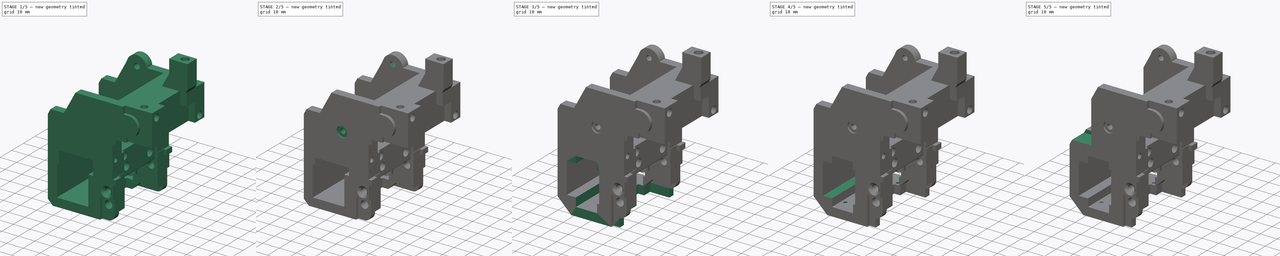
[diagram: build sequence overview — one tinted view per stage of 5, left to right]
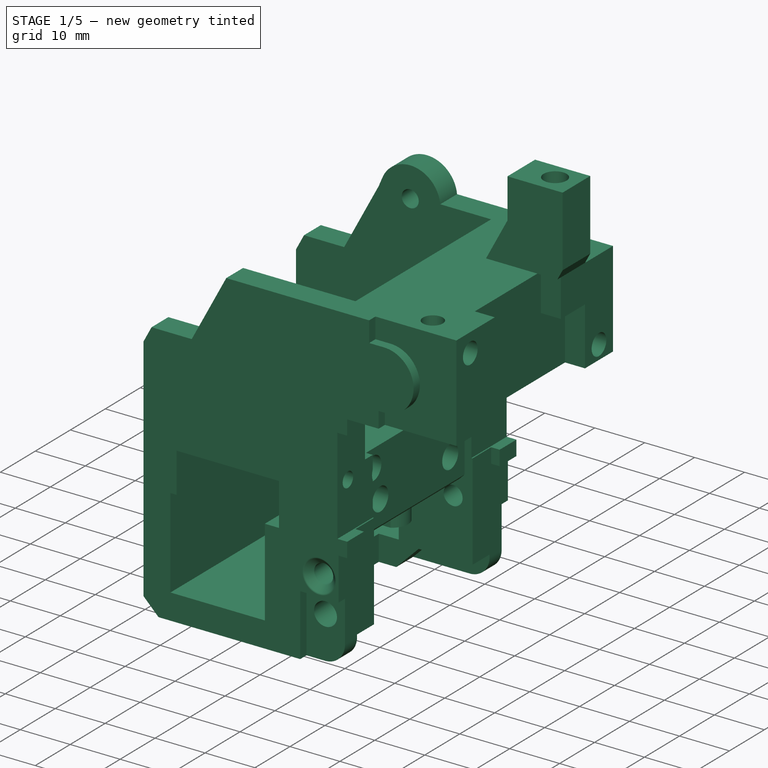
[diagram: stage 1 of 5 — iso view after this stage's code; geometry added in this stage tinted green]
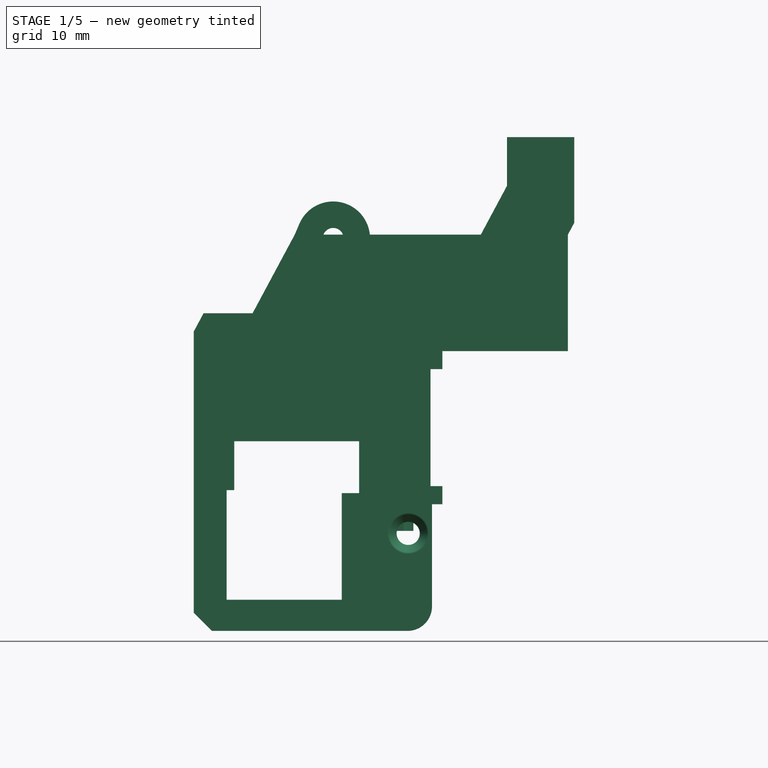
[diagram: stage 1 of 5 — front view after this stage's code; geometry added in this stage tinted green]
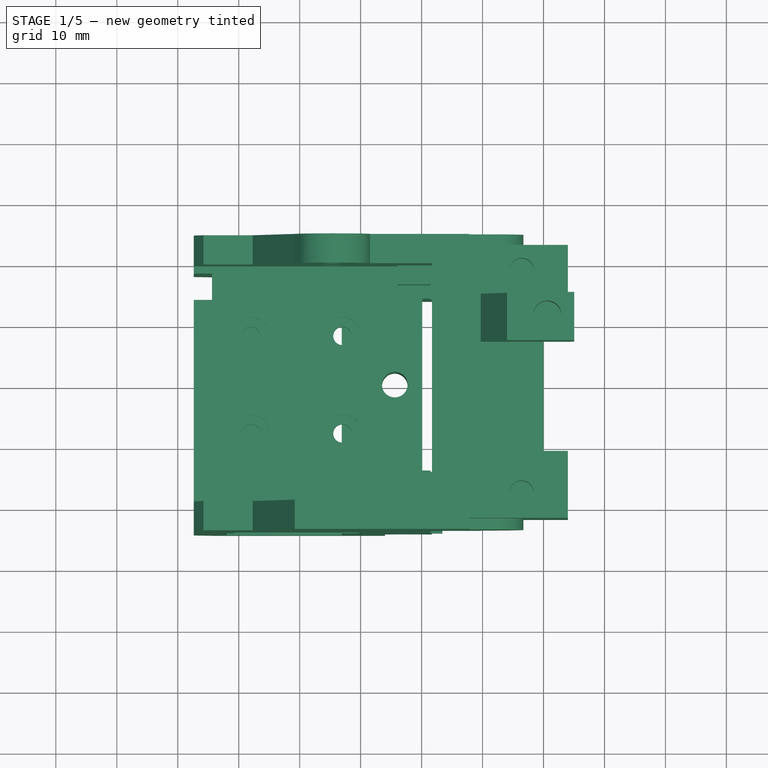
[diagram: stage 1 of 5 — top view after this stage's code; geometry added in this stage tinted green]
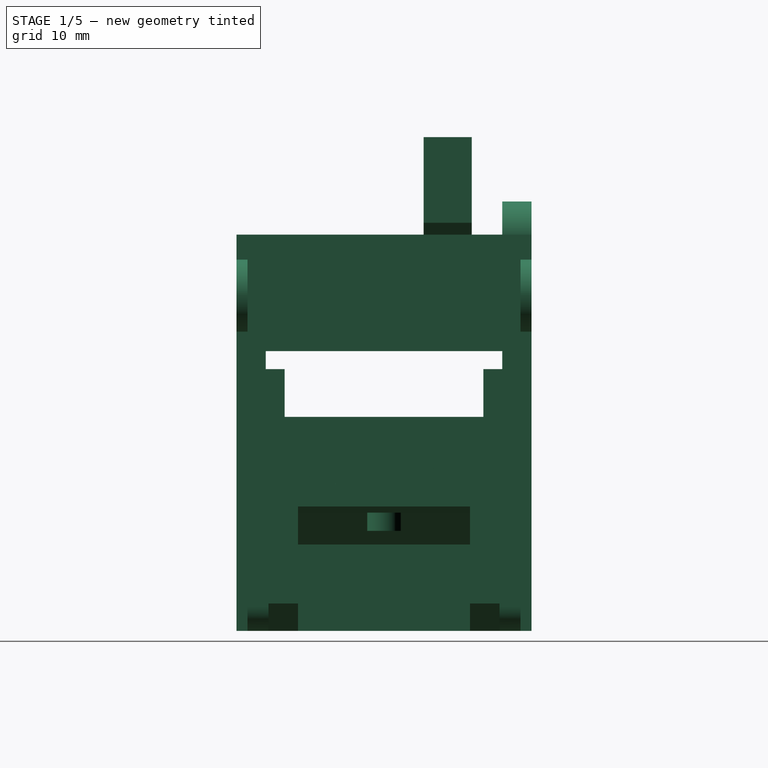
[diagram: stage 1 of 5 — right view after this stage's code; geometry added in this stage tinted green]
FCSTD DOCUMENT  (FreeCAD 1.0R38641 +468 (Git))
Label: k1_toolhead_experimental
License: All rights reserved
LicenseURL: https://en.wikipedia.org/wiki/All_rights_reserved
objects: Sketcher::SketchObject×22, PartDesign::Pocket×22, PartDesign::Pad×17, App::Link×9, PartDesign::Fillet×2, PartDesign::Line×2, Part::Feature×1, PartDesign::FeatureBase×1, PartDesign::Plane×1, PartDesign::Body×1, App::Part×1
note: 174 computed .brp shape members not serialized (recipe doc carries the construction recipe); baked Part::Feature solids carry a one-line shape summary decoded from their .brp
EXTERNAL_REF file=k1_toolhead_left_clamp.FCStd obj=Part
EXTERNAL_REF file=k1_toolhead_right_clamp.FCStd obj=Part
EXTERNAL_REF file=k1_toolhead_spacer.FCStd obj=Part
EXTERNAL_REF file=cad_hotend.FCStd obj=K1_Hotend
EXTERNAL_REF file=cad_mgn9h_block.FCStd obj=Body
EXTERNAL_REF file=cad_extruder.FCStd obj=K1_Extruder_Assembly_v25
EXTERNAL_REF file=k1_toolhead_cover.FCStd obj=Part
EXTERNAL_REF file=cad_3010.FCStd obj=DC_fan_3010_v3
EXTERNAL_REF file=cad_pcb.FCStd obj=COMPOUND069

FEATURE [Part::Feature] Part__Feature  label="step"
  shape: bbox 62.42 x 48.4 x 81 mm, 177 faces (baked)
FEATURE [PartDesign::FeatureBase] BaseFeature
  BaseFeature = -> Part__Feature
  Suppressed = false
FEATURE [App::Link] Link  label="k1_toolhead_left_clamp_link"
  LinkPlacement = pos=(29.25,-15.3795,18.9) rot=(0.57735,-0.57735,-0.57735;2.0944rad)
  LinkedObject = -> <external k1_toolhead_left_clamp.FCStd>#Part
  Placement = pos=(29.25,-15.3795,18.9) rot=(0.57735,-0.57735,-0.57735;2.0944rad)
FEATURE [App::Link] Link001  label="k1_toolhead_right_clamp_link"
  LinkPlacement = pos=(29.25,33.2,18.9) rot=(0.57735,-0.57735,-0.57735;2.0944rad)
  LinkedObject = -> <external k1_toolhead_right_clamp.FCStd>#Part
  Placement = pos=(29.25,33.2,18.9) rot=(0.57735,-0.57735,-0.57735;2.0944rad)
FEATURE [App::Link] Link002  label="k1_toolhead_spacer_link"
  LinkPlacement = pos=(26.3,-3.8445e-07,31.75) rot=(0.57735,-0.57735,-0.57735;2.0944rad)
  LinkedObject = -> <external k1_toolhead_spacer.FCStd>#Part
  Placement = pos=(26.3,-3.8445e-07,31.75) rot=(0.57735,-0.57735,-0.57735;2.0944rad)
FEATURE [App::Link] Link003  label="k1 hotend_link"
  LinkPlacement = pos=(0,-0.2,0) rot=(0,0,1;0rad)
  LinkedObject = -> <external cad_hotend.FCStd>#K1_Hotend
  Placement = pos=(0,-0.2,0) rot=(0,0,1;0rad)
FEATURE [App::Link] Link004  label="cad_mgn9h_block_link"
  LinkPlacement = pos=(-0.49,3.6e-15,23.1) rot=(0,0,1;1.5708rad)
  LinkedObject = -> <external cad_mgn9h_block.FCStd>#Body
  Placement = pos=(-0.49,3.6e-15,23.1) rot=(0,0,1;1.5708rad)
FEATURE [App::Link] Link005  label="cad_extruder_link"
  LinkPlacement = pos=(2.3,0.3,54.5) rot=(0,0,1;1.5708rad)
  LinkedObject = -> <external cad_extruder.FCStd>#K1_Extruder_Assembly_v25
  Placement = pos=(2.3,0.3,54.5) rot=(0,0,1;1.5708rad)
FEATURE [App::Link] Link006  label="k1_toolhead_cover_link"
  LinkPlacement = pos=(119.56,-251.103,-19.75) rot=(0,0,1;1.5708rad)
  LinkedObject = -> <external k1_toolhead_cover.FCStd>#Part
  Placement = pos=(119.56,-251.103,-19.75) rot=(0,0,1;1.5708rad)
FEATURE [Sketcher::SketchObject] Sketch
  ArcFitTolerance = 1e-06
  AttachmentSupport = -> [BaseFeature]
  ExternalGeometry = -> [BaseFeature]
  FullyConstrained = true
  MakeInternals = false
  MapMode = 5
  Placement = pos=(0,0,34.1) rot=(0,0,1;0rad)
  sketch-geometry (4):
    g0: ArcOfCircle CenterX=15.6 CenterY=-2e-16 CenterZ=0 NormalX=0 NormalY=0 NormalZ=1 AngleXU=0 Radius=2.1 StartAngle=4.71239 EndAngle=7.85398
    g1: ArcOfCircle CenterX=16 CenterY=0 CenterZ=0 NormalX=0 NormalY=0 NormalZ=1 AngleXU=0 Radius=2.1 StartAngle=4.71239 EndAngle=7.85398
    g2: LineSegment StartX=15.6 StartY=2.1 StartZ=0 EndX=16 EndY=2.1 EndZ=0
    g3: LineSegment StartX=16 StartY=-2.1 StartZ=0 EndX=15.6 EndY=-2.1 EndZ=0
  constraints (9):
    c: Coincident(g0,g-3)
    c: Coincident(g0,g-3)
    c: Coincident(g1,g-4)
    c: Coincident(g1,g-4)
    c: Tangent(g2,g0) = 1.5708
    c: Coincident(g2,g1)
    c: Coincident(g3,g1)
    c: Coincident(g3,g0)
    c: Horizontal(g3)
FEATURE [PartDesign::Pad] Pad
  BaseFeature = -> BaseFeature
  Direction = (0,0,1)
  Length = 10
  Length2 = 10
  Profile = -> Sketch
  ReferenceAxis = -> Sketch [N_Axis]
  Refine = true
  Reversed = true
  Suppressed = false
  Type = 3
  UpToFace = -> BaseFeature [Face148]
FEATURE [PartDesign::Fillet] Fillet
  Base = -> Pad [Edge424]
  BaseFeature = -> Pad
  Radius = 3
  Refine = true
  SupportTransform = false
  Suppressed = false
  UseAllEdges = false
FEATURE [PartDesign::Pad] Pad001
  BaseFeature = -> Fillet
  Direction = (0,0,1)
  Length = 1
  Length2 = 10
  Profile = -> Fillet [Face7]
  Refine = true
  Suppressed = false
  Type = 0
FEATURE [PartDesign::Pad] Pad002
  BaseFeature = -> Pad001
  Direction = (0,0,1)
  Length = 1
  Length2 = 10
  Profile = -> Pad001 [Face143,Face146,Face145,Face144]
  Refine = true
  Suppressed = false
  Type = 0
FEATURE [PartDesign::Line] DatumLine
  AttacherType = Attacher::AttachEngineLine
  AttachmentOffset = pos=(0,1,0) rot=(0,0,1;0rad)
  AttachmentSupport = -> [Pad002]
  Length = 20
  MapMode = 19
  Placement = pos=(5.5,23.2,45.4) rot=(0,0.707107,0.707107;3.14159rad)
  ResizeMode = 0
FEATURE [PartDesign::Line] DatumLine001
  AttacherType = Attacher::AttachEngineLine
  AttachmentOffset = pos=(0,1,0) rot=(0,0,1;0rad)
  AttachmentSupport = -> [Pad002]
  Length = 20
  MapMode = 19
  Placement = pos=(5.5,23.2,65.4) rot=(1,0,0;1.5708rad)
  ResizeMode = 0
FEATURE [PartDesign::Pad] Pad003
  BaseFeature = -> Pad002
  Direction = (2e-16,1,-2e-16)
  Length = 1
  Length2 = 10
  Profile = -> Pad002 [Face149,Face148]
  Refine = true
  Suppressed = false
  Type = 0
FEATURE [PartDesign::Pad] Pad004
  BaseFeature = -> Pad003
  Direction = (0,-1,0)
  Length = 10
  Length2 = 10
  Profile = -> Pad003 [Face146]
  Refine = true
  Suppressed = false
  Type = 3
  UpToFace = -> Pad003 [Face23]
FEATURE [PartDesign::Pad] Pad005
  BaseFeature = -> Pad004
  Direction = (0,1,0)
  Length = 10
  Length2 = 10
  Profile = -> Pad004 [Edge488]
  Refine = true
  Suppressed = false
  Type = 3
  UpToFace = -> Pad004 [Face52]
FEATURE [PartDesign::Body] Body  label="k1_toolhead_experimental"
  AllowCompound = false
  BaseFeature = -> Part__Feature
  Group = -> [BaseFeature,Sketch,Pad,Fillet,Pad001,Pad002,DatumLine,DatumLine001,Pad003,Pad004,Pad005,Pad006,Pad007,Sketch001,Pocket,Sketch002,Pocket001,Sketch003,Pocket002,Sketch004,Pocket003,Sketch005,Pocket004,Fillet001,DatumPlane,Pad008,Pad009,Pocket005,Sketch006,Pocket006,Pad010,Sketch007,Pocket007,Pad011,Sketch008,Pocket008,Sketch009,Pocket009,Sketch010,Pocket010,Sketch011,Pocket011,Sketch012,Pocket012,+23 more]
  Origin = -> Origin
  Tip = -> Pocket021
FEATURE [App::Part] Part  label="k1_toolhead_experimental_part"
  Group = -> [Part__Feature,Body,Link,Link001,Link002,Link003,Link004,Link005,Link006,Link007,Link008]
  Origin = -> Origin001

RESOLVED EXTERNAL PARTS (link-assembly join: the EXTERNAL_REF files above that resolve inside this repo's crawl, each included once):
---- part cad_mgn9h_block.FCStd = doc fcstd_29041af5fadc ----
FCSTD DOCUMENT  (FreeCAD 1.0R38641 +468 (Git))
Label: cad_mgn9h_block
License: All rights reserved
LicenseURL: https://en.wikipedia.org/wiki/All_rights_reserved
objects: Sketcher::SketchObject×3, PartDesign::Pocket×2, PartDesign::Pad×1, PartDesign::Body×1
note: 16 computed .brp shape members not serialized (recipe doc carries the construction recipe); baked Part::Feature solids carry a one-line shape summary decoded from their .brp

FEATURE [Sketcher::SketchObject] Sketch
  ArcFitTolerance = 1e-06
  AttachmentSupport = -> [XY_Plane]
  FullyConstrained = true
  MakeInternals = false
  MapMode = 5
  sketch-geometry (4):
    g0: LineSegment StartX=-19.95 StartY=10 StartZ=0 EndX=-19.95 EndY=-10 EndZ=0
    g1: LineSegment StartX=-19.95 StartY=-10 StartZ=0 EndX=19.95 EndY=-10 EndZ=0
    g2: LineSegment StartX=19.95 StartY=-10 StartZ=0 EndX=19.95 EndY=10 EndZ=0
    g3: LineSegment StartX=19.95 StartY=10 StartZ=0 EndX=-19.95 EndY=10 EndZ=0
  constraints (10):
    c: Coincident(g0,g1)
    c: Coincident(g1,g2)
    c: Coincident(g2,g3)
    c: Coincident(g3,g0)
    c: Vertical(g2)
    c: Horizontal(g1)
    c: Distance(g2,g2) = 20
    c: Distance(g3,g3) = 39.9
    c: Symmetric(g2,g0,g-2)
    c: Symmetric(g0,g0,g-1)
FEATURE [PartDesign::Pad] Pad
  Direction = (0,0,1)
  Length = 8
  Length2 = 10
  Profile = -> Sketch
  ReferenceAxis = -> Sketch [N_Axis]
  Refine = true
  Suppressed = false
  Type = 0
FEATURE [Sketcher::SketchObject] Sketch001
  ArcFitTolerance = 1e-06
  AttachmentSupport = -> [Pad]
  ExternalGeometry = -> [Pad]
  FullyConstrained = true
  MakeInternals = false
  MapMode = 5
  Placement = pos=(0,0,0) rot=(1,0,0;3.14159rad)
  sketch-geometry (4):
    g0: LineSegment StartX=-19.95 StartY=4.5 StartZ=0 EndX=-19.95 EndY=-4.5 EndZ=0
    g1: LineSegment StartX=-19.95 StartY=-4.5 StartZ=0 EndX=19.95 EndY=-4.5 EndZ=0
    g2: LineSegment StartX=19.95 StartY=-4.5 StartZ=0 EndX=19.95 EndY=4.5 EndZ=0
    g3: LineSegment StartX=19.95 StartY=4.5 StartZ=0 EndX=-19.95 EndY=4.5 EndZ=0
  constraints (11):
    c: Coincident(g0,g1)
    c: Coincident(g1,g2)
    c: Coincident(g2,g3)
    c: Coincident(g3,g0)
    c: Vertical(g0)
    c: Horizontal(g1)
    c: Horizontal(g3)
    c: PointOnObject(g0,g-3)
    c: PointOnObject(g1,g-4)
    c: Symmetric(g2,g1,g-1)
    c: Distance(g2,g2) = 9
FEATURE [PartDesign::Pocket] Pocket
  BaseFeature = -> Pad
  Direction = (0,0,1)
  Length = 4.5
  Length2 = 5
  Profile = -> Sketch001
  ReferenceAxis = -> Sketch001 [N_Axis]
  Refine = true
  Suppressed = false
  Type = 0
FEATURE [Sketcher::SketchObject] Sketch002
  ArcFitTolerance = 1e-06
  AttachmentSupport = -> [Pocket]
  FullyConstrained = true
  MakeInternals = false
  MapMode = 5
  Placement = pos=(0,0,8) rot=(0,0,1;0rad)
  sketch-geometry (8):
    g0: LineSegment [constr] StartX=-8 StartY=7.5 StartZ=0 EndX=-8 EndY=-7.5 EndZ=0
    g1: LineSegment [constr] StartX=-8 StartY=-7.5 StartZ=0 EndX=8 EndY=-7.5 EndZ=0
    g2: LineSegment [constr] StartX=8 StartY=-7.5 StartZ=0 EndX=8 EndY=7.5 EndZ=0
    g3: LineSegment [constr] StartX=8 StartY=7.5 StartZ=0 EndX=-8 EndY=7.5 EndZ=0
    g4: Circle CenterX=-8 CenterY=7.5 CenterZ=0 NormalX=0 NormalY=0 NormalZ=1 AngleXU=0 Radius=1.5
    g5: Circle CenterX=8 CenterY=7.5 CenterZ=0 NormalX=0 NormalY=0 NormalZ=1 AngleXU=0 Radius=1.5
    g6: Circle CenterX=8 CenterY=-7.5 CenterZ=0 NormalX=0 NormalY=0 NormalZ=1 AngleXU=0 Radius=1.5
    g7: Circle CenterX=-8 CenterY=-7.5 CenterZ=0 NormalX=0 NormalY=0 NormalZ=1 AngleXU=0 Radius=1.5
  constraints (18):
    c: Coincident(g0,g1)
    c: Coincident(g1,g2)
    c: Coincident(g2,g3)
    c: Coincident(g3,g0)
    c: Vertical(g0)
    c: Horizontal(g1)
    c: Symmetric(g1,g2,g-1)
    c: Symmetric(g0,g2,g-2)
    c: Distance(g0,g0) = 15
    c: Distance(g3,g3) = 16
    c: Coincident(g4,g0)
    c: Coincident(g5,g2)
    c: Coincident(g6,g1)
    c: Coincident(g7,g0)
    c: Equal(g7,g6)
    c: Equal(g6,g5)
    c: Equal(g5,g4)
    c: Diameter(g6) = 3
FEATURE [PartDesign::Pocket] Pocket001
  BaseFeature = -> Pocket
  Direction = (0,0,-1)
  Length = 4
  Length2 = 5
  Profile = -> Sketch002
  ReferenceAxis = -> Sketch002 [N_Axis]
  Refine = true
  Suppressed = false
  Type = 0
FEATURE [PartDesign::Body] Body  label="cad_mgn9h_block"
  AllowCompound = false
  Group = -> [Sketch,Pad,Sketch001,Pocket,Sketch002,Pocket001]
  Origin = -> Origin
  Tip = -> Pocket001
---- part k1_toolhead_cover.FCStd = doc fcstd_3dfff17acfa3 ----
FCSTD DOCUMENT  (FreeCAD 1.0R38641 +468 (Git))
Label: k1_toolhead_cover
License: All rights reserved
LicenseURL: https://en.wikipedia.org/wiki/All_rights_reserved
objects: Part::Feature×1, PartDesign::FeatureBase×1, PartDesign::Body×1, App::Link×1, App::Part×1
note: 4 computed .brp shape members not serialized (recipe doc carries the construction recipe); baked Part::Feature solids carry a one-line shape summary decoded from their .brp
EXTERNAL_REF file=cad_4020.FCStd obj=Blower_Fan_4020_v019

FEATURE [Part::Feature] Part__Feature  label="step"
  shape: bbox 48 x 61 x 86.9 mm, 4783 faces (baked)
FEATURE [PartDesign::FeatureBase] BaseFeature
  BaseFeature = -> Part__Feature
  Suppressed = false
FEATURE [PartDesign::Body] Body  label="k1_toolhead_cover"
  AllowCompound = false
  BaseFeature = -> Part__Feature
  Group = -> [BaseFeature]
  Origin = -> Origin
  Tip = -> BaseFeature
FEATURE [App::Link] Link  label="cad_4020_link"
  LinkPlacement = pos=(371.302,112.64,-346.501) rot=(0,0,1;1.5708rad)
  LinkedObject = -> <external cad_4020.FCStd>#Blower_Fan_4020_v019
  Placement = pos=(371.302,112.64,-346.501) rot=(0,0,1;1.5708rad)
FEATURE [App::Part] Part  label="k1_toolhead_cover_part"
  Group = -> [Part__Feature,Body,Link]
  Origin = -> Origin001
---- part k1_toolhead_left_clamp.FCStd = doc fcstd_961ffbdc5e15 ----
FCSTD DOCUMENT  (FreeCAD 1.0R38641 +468 (Git))
Label: k1_toolhead_left_clamp
License: All rights reserved
LicenseURL: https://en.wikipedia.org/wiki/All_rights_reserved
objects: PartDesign::Pocket×2, Part::Feature×1, PartDesign::FeatureBase×1, App::Link×1, Part::Part2DObjectPython×1, Sketcher::SketchObject×1, PartDesign::Body×1, App::Part×1
note: 13 computed .brp shape members not serialized (recipe doc carries the construction recipe); baked Part::Feature solids carry a one-line shape summary decoded from their .brp
EXTERNAL_REF file=cad_shaft_2_25mm.FCStd obj=Body

FEATURE [Part::Feature] Part__Feature  label="step"
  shape: bbox 10 x 25.13 x 7.5 mm, 30 faces (baked)
FEATURE [PartDesign::FeatureBase] BaseFeature
  BaseFeature = -> Part__Feature
  Suppressed = false
FEATURE [App::Link] Link  label="cad_shaft_2_25_link"
  LinkPlacement = pos=(1.7,2,6) rot=(-1,0,0;1.5708rad)
  LinkedObject = -> <external cad_shaft_2_25mm.FCStd>#Body
  Placement = pos=(1.7,2,6) rot=(-1,0,0;1.5708rad)
FEATURE [Part::Part2DObjectPython] ShapeString  # Draft 2D object (typed FeaturePython)
  FontFile = <path>
  Fuse = false
  Justification = 6
  JustificationReference = 0
  KeepLeftMargin = false
  MakeFace = true
  ObliqueAngle = 0
  Placement = pos=(6,19,0.4) rot=(0,1,0;3.14159rad)
  ScaleToSize = true
  Size = 5
  String = L
  Tracking = 0
FEATURE [PartDesign::Pocket] Pocket
  BaseFeature = -> BaseFeature
  Direction = (-1e-16,0,1)
  Length = 0.2
  Length2 = 5
  Profile = -> ShapeString
  ReferenceAxis = -> ShapeString [N_Axis]
  Refine = true
  Suppressed = false
  Type = 0
FEATURE [Sketcher::SketchObject] Sketch
  ArcFitTolerance = 1e-06
  AttachmentSupport = -> [Pocket]
  ExternalGeometry = -> [Pocket]
  FullyConstrained = true
  MakeInternals = false
  MapMode = 5
  Placement = pos=(0,0,2.4) rot=(1,0,0;3.14159rad)
  sketch-geometry (4):
    g0: LineSegment StartX=4.26795 StartY=-13.435 StartZ=0 EndX=7.73205 EndY=-13.435 EndZ=0
    g1: LineSegment StartX=4.26795 StartY=-15.435 StartZ=0 EndX=7.73205 EndY=-15.435 EndZ=0
    g2: ArcOfCircle CenterX=6 CenterY=-14.435 CenterZ=0 NormalX=0 NormalY=0 NormalZ=1 AngleXU=0 Radius=2 StartAngle=2.61799 EndAngle=3.66519
    g3: ArcOfCircle CenterX=6 CenterY=-14.435 CenterZ=0 NormalX=0 NormalY=0 NormalZ=1 AngleXU=0 Radius=2 StartAngle=5.75959 EndAngle=6.80678
  constraints (14):
    c: Horizontal(g0)
    c: Horizontal(g1)
    c: Coincident(g2,g0)
    c: Coincident(g2,g1)
    c: Coincident(g3,g0)
    c: Coincident(g3,g1)
    c: Tangent(g-4,g0)
    c: Tangent(g1,g-4)
    c: Equal(g0,g1)
    c: PointOnObject(g0,g-3)
    c: PointOnObject(g1,g-3)
    c: PointOnObject(g0,g-3)
    c: Radius(g3) = 2
    c: Radius(g2) = 2
FEATURE [PartDesign::Pocket] Pocket001
  BaseFeature = -> Pocket
  Direction = (0,0,1)
  Length = 0.2
  Length2 = 5
  Profile = -> Sketch
  ReferenceAxis = -> Sketch [N_Axis]
  Refine = true
  Suppressed = false
  Type = 0
FEATURE [PartDesign::Body] Body  label="k1_toolhead_left_clamp"
  AllowCompound = false
  BaseFeature = -> Part__Feature
  Group = -> [BaseFeature,ShapeString,Pocket,Sketch,Pocket001]
  Origin = -> Origin
  Tip = -> Pocket001
FEATURE [App::Part] Part  label="k1_toolhead_left_clamp_part"
  Group = -> [Part__Feature,Body,Link]
  Origin = -> Origin001
  Placement = pos=(0,0,0) rot=(0,0.707107,0.707107;3.14159rad)
note: 1 file-system path scrubbed to <path> (originals preserved in the JSON sidecar)
---- part k1_toolhead_right_clamp.FCStd = doc fcstd_bf3c39ec592f ----
FCSTD DOCUMENT  (FreeCAD 1.0R38641 +468 (Git))
Label: k1_toolhead_right_clamp
License: All rights reserved
LicenseURL: https://en.wikipedia.org/wiki/All_rights_reserved
objects: PartDesign::Pocket×2, Part::Feature×1, PartDesign::FeatureBase×1, App::Link×1, Part::Part2DObjectPython×1, Sketcher::SketchObject×1, PartDesign::Body×1, App::Part×1
note: 13 computed .brp shape members not serialized (recipe doc carries the construction recipe); baked Part::Feature solids carry a one-line shape summary decoded from their .brp
EXTERNAL_REF file=cad_shaft_2_25mm.FCStd obj=Body

FEATURE [Part::Feature] Part__Feature  label="step"
  shape: bbox 10 x 25.13 x 7.5 mm, 30 faces (baked)
FEATURE [PartDesign::FeatureBase] BaseFeature
  BaseFeature = -> Part__Feature
  Suppressed = false
FEATURE [PartDesign::Body] Body  label="k1_toolhead_right_clamp"
  AllowCompound = false
  BaseFeature = -> Part__Feature
  Group = -> [BaseFeature,ShapeString,Pocket,Sketch,Pocket001]
  Origin = -> Origin
  Placement = pos=(0.6,8e-15,0) rot=(0,0,1;0rad)
  Tip = -> Pocket001
FEATURE [App::Part] Part  label="k1_toolhead_right_clamp_part"
  Group = -> [Part__Feature,Body,Link]
  Origin = -> Origin001
  Placement = pos=(0,0,0) rot=(0,0.707107,0.707107;3.14159rad)
note: 1 file-system path scrubbed to <path> (originals preserved in the JSON sidecar)
---- part k1_toolhead_spacer.FCStd = doc fcstd_0f3451a9a4a1 ----
FCSTD DOCUMENT  (FreeCAD 1.0R38641 +468 (Git))
Label: k1_toolhead_spacer
License: All rights reserved
LicenseURL: https://en.wikipedia.org/wiki/All_rights_reserved
objects: PartDesign::Pad×4, Sketcher::SketchObject×2, PartDesign::Body×1, App::Part×1
note: 17 computed .brp shape members not serialized (recipe doc carries the construction recipe); baked Part::Feature solids carry a one-line shape summary decoded from their .brp

FEATURE [Sketcher::SketchObject] Sketch
  ArcFitTolerance = 1e-06
  AttachmentSupport = -> [XY_Plane]
  FullyConstrained = true
  MakeInternals = false
  MapMode = 5
  sketch-geometry (6):
    g0: LineSegment StartX=-14.1 StartY=2.35 StartZ=0 EndX=-14.1 EndY=-2.35 EndZ=0
    g1: LineSegment StartX=-14.1 StartY=-2.35 StartZ=0 EndX=14.1 EndY=-2.35 EndZ=0
    g2: LineSegment StartX=14.1 StartY=-2.35 StartZ=0 EndX=14.1 EndY=2.35 EndZ=0
    g3: LineSegment StartX=14.1 StartY=2.35 StartZ=0 EndX=-14.1 EndY=2.35 EndZ=0
    g4: Circle CenterX=-12 CenterY=-0.25 CenterZ=0 NormalX=0 NormalY=0 NormalZ=1 AngleXU=0 Radius=1.5
    g5: Circle CenterX=12 CenterY=-0.25 CenterZ=0 NormalX=0 NormalY=0 NormalZ=1 AngleXU=0 Radius=1.5
  constraints (15):
    c: Coincident(g0,g1)
    c: Coincident(g1,g2)
    c: Coincident(g2,g3)
    c: Coincident(g3,g0)
    c: Vertical(g2)
    c: Horizontal(g1)
    c: Symmetric(g0,g0,g-1)
    c: Symmetric(g0,g2,g-2)
    c: Distance(g0,g0) = 4.7
    c: Distance(g3,g3) = 28.2
    c: Symmetric(g5,g4,g-2)
    c: Equal(g4,g5)
    c: Diameter(g4) = 3
    c: Distance(g5,g2) = 2.1
    c: Distance(g5,g3) = 2.6
FEATURE [PartDesign::Pad] Pad
  Direction = (0,0,1)
  Length = 4.6
  Length2 = 10
  Profile = -> Sketch
  ReferenceAxis = -> Sketch [N_Axis]
  Refine = true
  Suppressed = false
  Type = 0
FEATURE [Sketcher::SketchObject] Sketch001
  ArcFitTolerance = 1e-06
  AttachmentSupport = -> [Pad]
  ExternalGeometry = -> [Pad]
  FullyConstrained = true
  MakeInternals = false
  MapMode = 5
  Placement = pos=(0,0,4.6) rot=(0,0,1;0rad)
  sketch-geometry (4):
    g0: ArcOfCircle CenterX=12 CenterY=-0.25 CenterZ=0 NormalX=0 NormalY=0 NormalZ=1 AngleXU=0 Radius=2.6 StartAngle=4.08182 EndAngle=5.34296
    g1: ArcOfCircle CenterX=-12 CenterY=-0.25 CenterZ=0 NormalX=0 NormalY=0 NormalZ=1 AngleXU=0 Radius=2.6 StartAngle=4.08182 EndAngle=5.34296
    g2: LineSegment StartX=-13.533 StartY=-2.35 StartZ=0 EndX=-10.467 EndY=-2.35 EndZ=0
    g3: LineSegment StartX=10.467 StartY=-2.35 StartZ=0 EndX=13.533 EndY=-2.35 EndZ=0
  constraints (12):
    c: Coincident(g0,g-4)
    c: PointOnObject(g0,g-5)
    c: PointOnObject(g0,g-5)
    c: Coincident(g1,g-3)
    c: PointOnObject(g1,g-5)
    c: PointOnObject(g1,g-5)
    c: Equal(g0,g1)
    c: Radius(g0) = 2.6
    c: Coincident(g2,g1)
    c: Coincident(g2,g1)
    c: Coincident(g3,g0)
    c: Coincident(g3,g0)
FEATURE [PartDesign::Pad] Pad001
  BaseFeature = -> Pad
  Direction = (0,0,1)
  Length = 10
  Length2 = 10
  Profile = -> Sketch001
  ReferenceAxis = -> Sketch001 [N_Axis]
  Refine = true
  Suppressed = false
  Type = 3
  UpToFace = -> Pad [Face7]
FEATURE [PartDesign::Pad] Pad002
  BaseFeature = -> Pad001
  Direction = (0,0,1)
  Length = 1.6
  Length2 = 10
  Profile = -> Pad001 [Face12]
  Refine = true
  Suppressed = false
  Type = 0
FEATURE [PartDesign::Pad] Pad003
  BaseFeature = -> Pad002
  Direction = (0,1,0)
  Length = 1
  Length2 = 10
  Profile = -> Pad002 [Face4]
  Refine = true
  Suppressed = false
  Type = 0
FEATURE [PartDesign::Body] Body  label="k1_toolhead_spacer"
  AllowCompound = false
  Group = -> [Sketch,Pad,Sketch001,Pad001,Pad002,Pad003]
  Origin = -> Origin
  Tip = -> Pad003
FEATURE [App::Part] Part  label="k1_toolhead_spacer_part"
  Group = -> [Body]
  Origin = -> Origin001
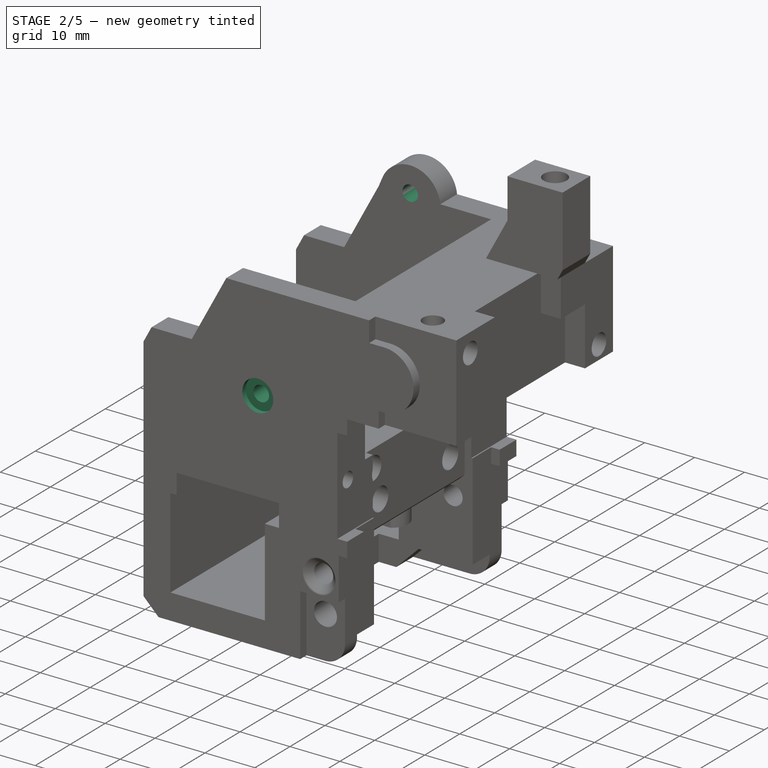
[diagram: stage 2 of 5 — iso view after this stage's code; geometry added in this stage tinted green]
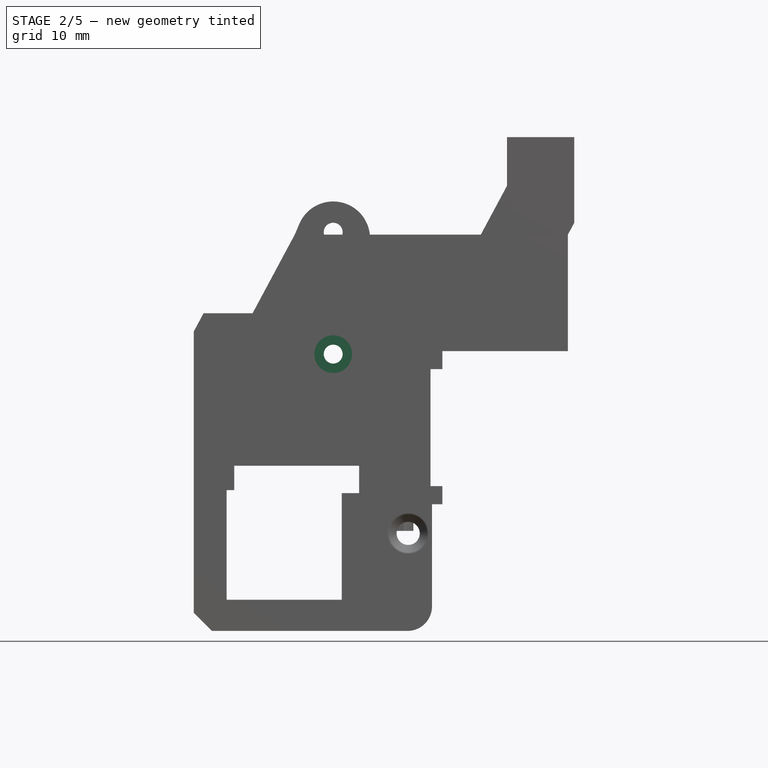
[diagram: stage 2 of 5 — front view after this stage's code; geometry added in this stage tinted green]
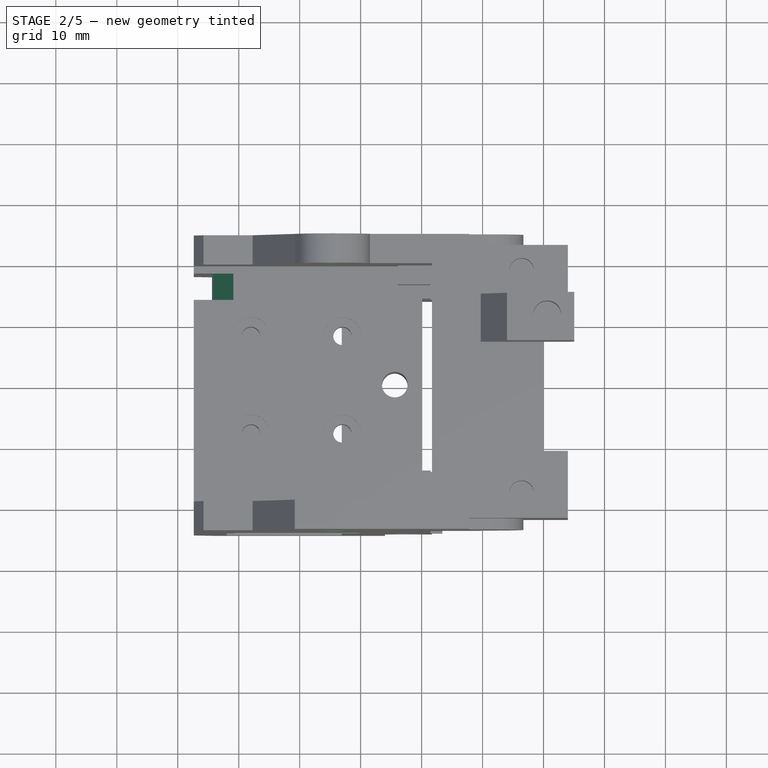
[diagram: stage 2 of 5 — top view after this stage's code; geometry added in this stage tinted green]
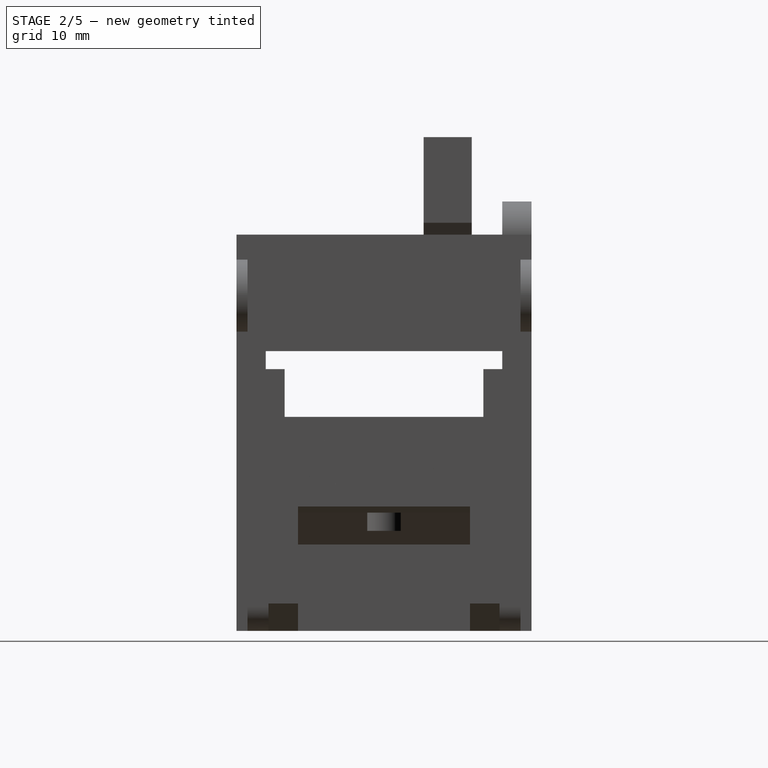
[diagram: stage 2 of 5 — right view after this stage's code; geometry added in this stage tinted green]
FEATURE [PartDesign::Pad] Pad006
  BaseFeature = -> Pad005
  Direction = (0,1,0)
  Length = 10
  Length2 = 10
  Profile = -> Pad005 [Edge45]
  Refine = true
  Suppressed = false
  Type = 3
  UpToFace = -> Pad005 [Face44]
FEATURE [PartDesign::Pad] Pad007
  BaseFeature = -> Pad006
  Direction = (-1.4e-15,1,0)
  Length = 10
  Length2 = 10
  Profile = -> Pad006 [Edge480]
  Refine = true
  Suppressed = false
  Type = 3
  UpToFace = -> Pad006 [Face167]
FEATURE [Sketcher::SketchObject] Sketch001
  ArcFitTolerance = 1e-06
  AttachmentSupport = -> [Pad007]
  ExternalGeometry = -> [DatumLine001,DatumLine]
  FullyConstrained = true
  MakeInternals = false
  MapMode = 5
  Placement = pos=(0,24.2,0) rot=(0,0.707107,0.707107;3.14159rad)
  sketch-geometry (2):
    g0: Circle CenterX=-5.5 CenterY=65.4 CenterZ=0 NormalX=0 NormalY=0 NormalZ=1 AngleXU=0 Radius=1.55
    g1: Circle CenterX=-5.5 CenterY=45.4 CenterZ=0 NormalX=0 NormalY=0 NormalZ=1 AngleXU=0 Radius=1.55
  constraints (4):
    c: Coincident(g0,g-3)
    c: Coincident(g1,g-4)
    c: Equal(g1,g0)
    c: Diameter(g0) = 3.1
FEATURE [PartDesign::Pocket] Pocket
  BaseFeature = -> Pad007
  Direction = (0,-1,2e-16)
  Length = 5
  Length2 = 5
  Profile = -> Sketch001
  ReferenceAxis = -> Sketch001 [N_Axis]
  Refine = true
  Suppressed = false
  Type = 0
FEATURE [Sketcher::SketchObject] Sketch002
  ArcFitTolerance = 1e-06
  AttachmentSupport = -> [Pocket]
  ExternalGeometry = -> [DatumLine]
  FullyConstrained = true
  MakeInternals = false
  MapMode = 5
  Placement = pos=(0,-24.2,0) rot=(1,0,0;1.5708rad)
  sketch-geometry (1):
    g0: Circle CenterX=5.5 CenterY=45.4 CenterZ=0 NormalX=0 NormalY=0 NormalZ=1 AngleXU=0 Radius=1.55
  constraints (2):
    c: Coincident(g0,g-3)
    c: Diameter(g0) = 3.1
FEATURE [PartDesign::Pocket] Pocket001
  BaseFeature = -> Pocket
  Direction = (0,1,-2e-16)
  Length = 5
  Length2 = 5
  Profile = -> Sketch002
  ReferenceAxis = -> Sketch002 [N_Axis]
  Refine = true
  Suppressed = false
  Type = 0
FEATURE [Sketcher::SketchObject] Sketch003
  ArcFitTolerance = 1e-06
  AttachmentSupport = -> [Pocket001]
  ExternalGeometry = -> [DatumLine001,DatumLine]
  FullyConstrained = true
  MakeInternals = false
  MapMode = 5
  Placement = pos=(0,24.2,0) rot=(0,0.707107,0.707107;3.14159rad)
  sketch-geometry (2):
    g0: Circle CenterX=-5.5 CenterY=65.4 CenterZ=0 NormalX=0 NormalY=0 NormalZ=1 AngleXU=0 Radius=3.1
    g1: Circle CenterX=-5.5 CenterY=45.4 CenterZ=0 NormalX=0 NormalY=0 NormalZ=1 AngleXU=0 Radius=3.1
  constraints (4):
    c: Coincident(g0,g-3)
    c: Coincident(g1,g-4)
    c: Equal(g1,g0)
    c: Diameter(g0) = 6.2
FEATURE [PartDesign::Pocket] Pocket002
  BaseFeature = -> Pocket001
  Direction = (0,-1,2e-16)
  Length = 1
  Length2 = 5
  Profile = -> Sketch003
  ReferenceAxis = -> Sketch003 [N_Axis]
  Refine = true
  Suppressed = false
  Type = 0
FEATURE [Sketcher::SketchObject] Sketch004
  ArcFitTolerance = 1e-06
  AttachmentSupport = -> [Pocket002]
  ExternalGeometry = -> [DatumLine]
  FullyConstrained = true
  MakeInternals = false
  MapMode = 5
  Placement = pos=(0,-24.2,0) rot=(1,0,0;1.5708rad)
  sketch-geometry (1):
    g0: Circle CenterX=5.5 CenterY=45.4 CenterZ=0 NormalX=0 NormalY=0 NormalZ=1 AngleXU=0 Radius=3.1
  constraints (2):
    c: Coincident(g0,g-3)
    c: Diameter(g0) = 6.2
FEATURE [PartDesign::Pocket] Pocket003
  BaseFeature = -> Pocket002
  Direction = (0,1,-2e-16)
  Length = 1
  Length2 = 5
  Profile = -> Sketch004
  ReferenceAxis = -> Sketch004 [N_Axis]
  Refine = true
  Suppressed = false
  Type = 0
FEATURE [Sketcher::SketchObject] Sketch005
  ArcFitTolerance = 1e-06
  AttachmentSupport = -> [Pocket003]
  ExternalGeometry = -> [Pocket003]
  FullyConstrained = true
  MakeInternals = false
  MapMode = 5
  Placement = pos=(0,13.9,0) rot=(0,0.707107,0.707107;3.14159rad)
  sketch-geometry (3):
    g0: LineSegment StartX=14.38 StartY=29.3 StartZ=0 EndX=10.88 EndY=35.1 EndZ=0
    g1: LineSegment StartX=14.38 StartY=29.3 StartZ=0 EndX=14.38 EndY=35.1 EndZ=0
    g2: LineSegment StartX=14.38 StartY=35.1 StartZ=0 EndX=10.88 EndY=35.1 EndZ=0
  constraints (8):
    c: PointOnObject(g0,g-3)
    c: PointOnObject(g0,g-5)
    c: Coincident(g1,g-4)
    c: Coincident(g2,g1)
    c: Coincident(g2,g0)
    c: Coincident(g1,g0)
    c: Distance(g2,g2) = 3.5
    c: Distance(g1,g1) = 5.8
FEATURE [PartDesign::Pocket] Pocket004
  BaseFeature = -> Pocket003
  Direction = (0,-1,2e-16)
  Length = 0
  Length2 = 5
  Profile = -> Sketch005
  ReferenceAxis = -> Sketch005 [N_Axis]
  Refine = true
  Reversed = true
  Suppressed = false
  Type = 3
  UpToFace = -> Pocket003 [Face61]
FEATURE [PartDesign::Fillet] Fillet001
  Base = -> Pocket004 [Edge452]
  BaseFeature = -> Pocket004
  Radius = 3
  Refine = true
  SupportTransform = false
  Suppressed = false
  UseAllEdges = false
FEATURE [App::Link] Link007  label="cad_3010_link"
  LinkPlacement = pos=(2.84,-387,-65.5) rot=(0,0,1;0rad)
  LinkedObject = -> <external cad_3010.FCStd>#DC_fan_3010_v3
  Placement = pos=(2.84,-387,-65.5) rot=(0,0,1;0rad)
FEATURE [App::Link] Link008  label="cad_pcb_link"
  LinkPlacement = pos=(3,0,0) rot=(0,0,1;0rad)
  LinkedObject = -> <external cad_pcb.FCStd>#COMPOUND069
  Placement = pos=(3,0,0) rot=(0,0,1;0rad)
FEATURE [PartDesign::Plane] DatumPlane
  AttachmentOffset = pos=(0,0,4) rot=(0,0,1;0rad)
  AttachmentSupport = -> [Fillet001]
  Length = 81.879
  MapMode = 5
  Placement = pos=(0,0,27.1) rot=(1,0,0;3.14159rad)
  ResizeMode = 0
  Width = 61.8358
FEATURE [PartDesign::Pad] Pad008
  BaseFeature = -> Fillet001
  Direction = (0,0,-1)
  Length = 10
  Length2 = 10
  Profile = -> Fillet001 [Face105]
  Refine = true
  Suppressed = false
  Type = 3
  UpToFace = -> DatumPlane
FEATURE [App::Link] Link  label="cad_shaft_2_25_link"
  LinkPlacement = pos=(17,2.00001,6) rot=(-1,0,0;1.5708rad)
  LinkedObject = -> <external cad_shaft_2_25mm.FCStd>#Body
  Placement = pos=(17,2.00001,6) rot=(-1,0,0;1.5708rad)
FEATURE [Part::Part2DObjectPython] ShapeString  # Draft 2D object (typed FeaturePython)
  FontFile = <path>
  Fuse = false
  Justification = 6
  JustificationReference = 0
  KeepLeftMargin = false
  MakeFace = true
  ObliqueAngle = 0
  Placement = pos=(15,19,0.4) rot=(0,-1,0;3.14159rad)
  ScaleToSize = true
  Size = 5
  String = R
  Tracking = 0
FEATURE [PartDesign::Pocket] Pocket
  BaseFeature = -> BaseFeature
  Direction = (-1e-16,1e-16,1)
  Length = 0.2
  Length2 = 5
  Profile = -> ShapeString
  ReferenceAxis = -> ShapeString [N_Axis]
  Refine = true
  Suppressed = false
  Type = 0
FEATURE [Sketcher::SketchObject] Sketch
  ArcFitTolerance = 1e-06
  AttachmentSupport = -> [Pocket]
  ExternalGeometry = -> [Pocket]
  FullyConstrained = true
  MakeInternals = false
  MapMode = 5
  Placement = pos=(0,0,2.4) rot=(1,0,0;3.14159rad)
  sketch-geometry (4):
    g0: LineSegment StartX=10.2679 StartY=-13.435 StartZ=0 EndX=13.7321 EndY=-13.435 EndZ=0
    g1: LineSegment StartX=10.2679 StartY=-15.435 StartZ=0 EndX=13.7321 EndY=-15.435 EndZ=0
    g2: ArcOfCircle CenterX=12 CenterY=-14.435 CenterZ=0 NormalX=0 NormalY=0 NormalZ=1 AngleXU=0 Radius=2 StartAngle=2.61799 EndAngle=3.66519
    g3: ArcOfCircle CenterX=12 CenterY=-14.435 CenterZ=0 NormalX=0 NormalY=0 NormalZ=1 AngleXU=0 Radius=2 StartAngle=5.75959 EndAngle=6.80678
  constraints (14):
    c: Horizontal(g0)
    c: Horizontal(g1)
    c: Coincident(g2,g0)
    c: Coincident(g2,g1)
    c: Coincident(g3,g1)
    c: Tangent(g0,g-3)
    c: Tangent(g1,g-3)
    c: Equal(g1,g0)
    c: PointOnObject(g0,g-4)
    c: Coincident(g0,g3)
    c: PointOnObject(g0,g-4)
    c: PointOnObject(g1,g-4)
    c: Radius(g3) = 2
    c: Radius(g2) = 2
FEATURE [PartDesign::Pocket] Pocket001
  BaseFeature = -> Pocket
  Direction = (0,0,1)
  Length = 0.2
  Length2 = 5
  Profile = -> Sketch
  ReferenceAxis = -> Sketch [N_Axis]
  Refine = true
  Suppressed = false
  Type = 0
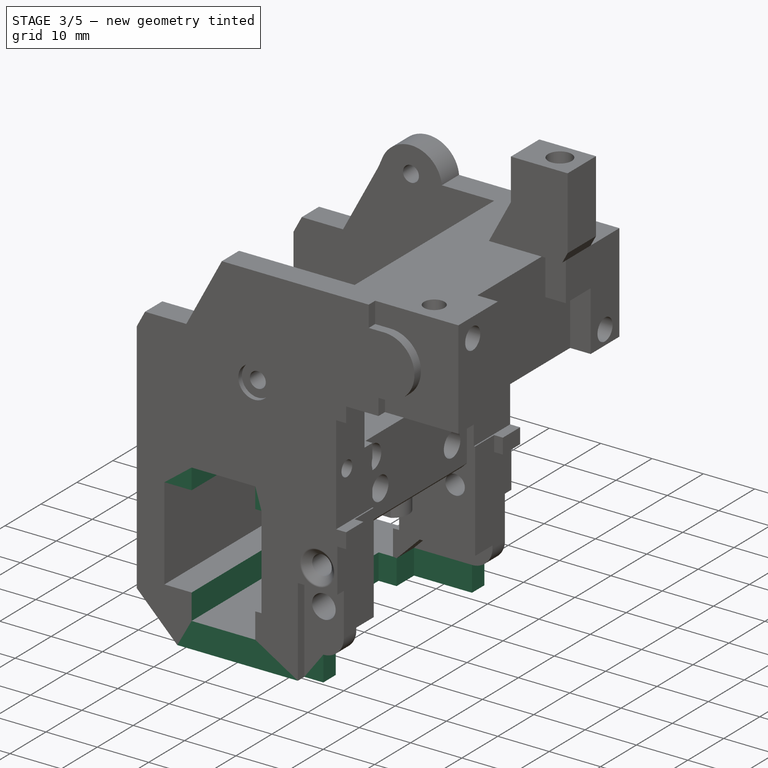
[diagram: stage 3 of 5 — iso view after this stage's code; geometry added in this stage tinted green]
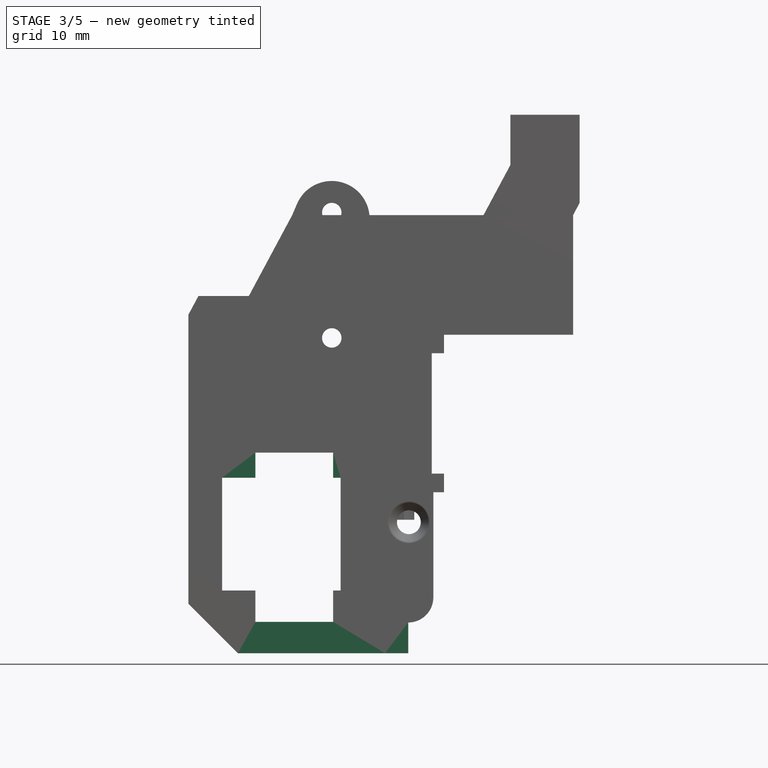
[diagram: stage 3 of 5 — front view after this stage's code; geometry added in this stage tinted green]
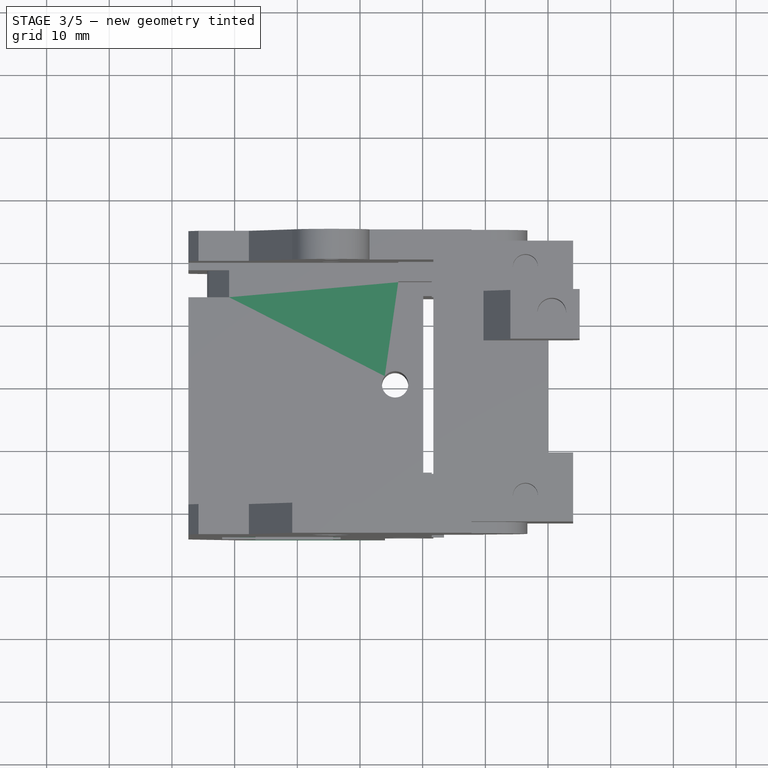
[diagram: stage 3 of 5 — top view after this stage's code; geometry added in this stage tinted green]
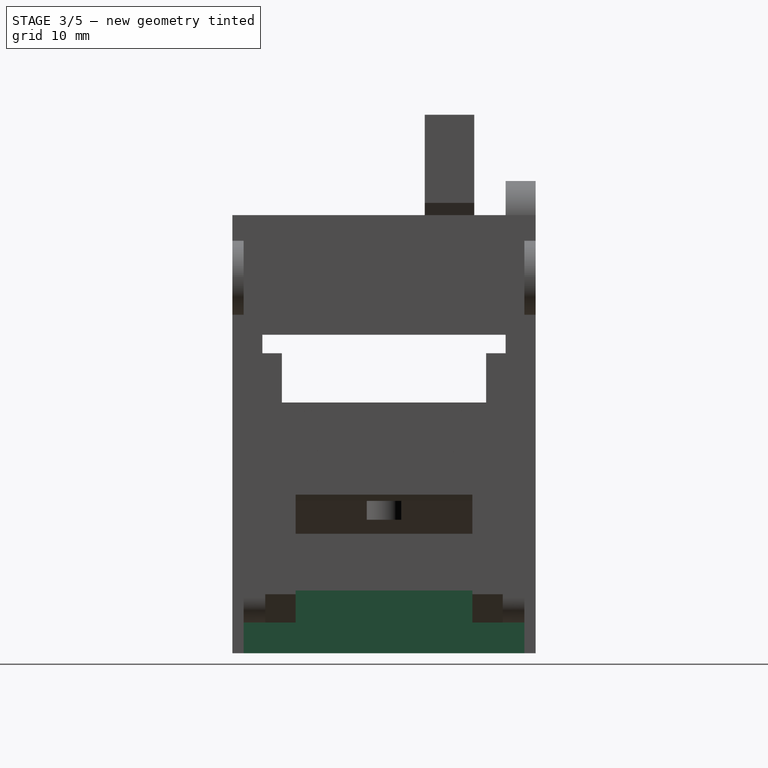
[diagram: stage 3 of 5 — right view after this stage's code; geometry added in this stage tinted green]
FEATURE [PartDesign::Pad] Pad009
  BaseFeature = -> Pad008
  Direction = (-1,0,-5e-16)
  Length = 10
  Length2 = 10
  Profile = -> Pad008 [Face9]
  Refine = true
  Suppressed = false
  Type = 3
  UpToFace = -> Pad008 [Face113]
FEATURE [PartDesign::Pocket] Pocket005
  BaseFeature = -> Pad009
  Direction = (-5e-16,2e-16,1)
  Length = 0
  Length2 = 5
  Profile = -> Pad009 [Face88]
  Refine = true
  Suppressed = false
  Type = 3
  UpToFace = -> Pad009 [Face11]
FEATURE [Sketcher::SketchObject] Sketch006
  ArcFitTolerance = 1e-06
  AttachmentSupport = -> [DatumPlane]
  ExternalGeometry = -> [Pocket005]
  FullyConstrained = true
  MakeInternals = false
  MapMode = 5
  Placement = pos=(0,0,27.1) rot=(1,0,0;3.14159rad)
  sketch-geometry (5):
    g0: LineSegment [constr] StartX=-0.49 StartY=24.2 StartZ=0 EndX=-0.49 EndY=-24.2 EndZ=0
    g1: LineSegment StartX=-6.69 StartY=24.2 StartZ=0 EndX=-6.69 EndY=-24.2 EndZ=0
    g2: LineSegment StartX=-6.69 StartY=-24.2 StartZ=0 EndX=5.71 EndY=-24.2 EndZ=0
    g3: LineSegment StartX=5.71 StartY=-24.2 StartZ=0 EndX=5.71 EndY=24.2 EndZ=0
    g4: LineSegment StartX=5.71 StartY=24.2 StartZ=0 EndX=-6.69 EndY=24.2 EndZ=0
  constraints (14):
    c: Symmetric(g-3,g-4,g0)
    c: PointOnObject(g0,g-8)
    c: PointOnObject(g0,g-7)
    c: Coincident(g1,g2)
    c: Coincident(g2,g3)
    c: Coincident(g3,g4)
    c: Coincident(g4,g1)
    c: Vertical(g1)
    c: Vertical(g3)
    c: Horizontal(g2)
    c: Distance(g2,g2) = 12.4
    c: Symmetric(g1,g3,g0)
    c: PointOnObject(g1,g-7)
    c: PointOnObject(g1,g-8)
FEATURE [PartDesign::Pocket] Pocket006
  BaseFeature = -> Pocket005
  Direction = (0,0,1)
  Length = 15
  Length2 = 5
  Profile = -> Sketch006
  ReferenceAxis = -> Sketch006 [N_Axis]
  Refine = true
  Reversed = true
  Suppressed = false
  Type = 0
FEATURE [PartDesign::Pad] Pad010
  BaseFeature = -> Pocket006
  Direction = (0,0,1)
  Length = 10
  Length2 = 10
  Profile = -> Pocket006 [Edge296,Edge297,Edge293,Edge292]
  Refine = true
  Reversed = true
  Suppressed = false
  Type = 3
  UpToFace = -> Pocket006 [Face30]
FEATURE [Sketcher::SketchObject] Sketch007
  ArcFitTolerance = 1e-06
  AttachmentSupport = -> [Pad010]
  ExternalGeometry = -> [Pad010]
  FullyConstrained = true
  MakeInternals = false
  MapMode = 5
  Placement = pos=(0,-24.2,0) rot=(1,0,0;1.5708rad)
  sketch-geometry (4):
    g0: LineSegment StartX=-6.69 StartY=5.1 StartZ=0 EndX=-6.69 EndY=0.1 EndZ=0
    g1: LineSegment StartX=-6.69 StartY=0.1 StartZ=0 EndX=5.71 EndY=0.1 EndZ=0
    g2: LineSegment StartX=5.71 StartY=0.1 StartZ=0 EndX=5.71 EndY=5.1 EndZ=0
    g3: LineSegment StartX=5.71 StartY=5.1 StartZ=0 EndX=-6.69 EndY=5.1 EndZ=0
  constraints (12):
    c: Coincident(g0,g1)
    c: Coincident(g1,g2)
    c: Coincident(g2,g3)
    c: Coincident(g3,g0)
    c: Vertical(g0)
    c: Vertical(g2)
    c: Horizontal(g1)
    c: Horizontal(g3)
    c: PointOnObject(g0,g-3)
    c: PointOnObject(g2,g-5)
    c: PointOnObject(g0,g-6)
    c: Distance(g1,g-4) = 27
FEATURE [PartDesign::Pocket] Pocket007
  BaseFeature = -> Pad010
  Direction = (0,1,-2e-16)
  Length = 5
  Length2 = 5
  Profile = -> Sketch007
  ReferenceAxis = -> Sketch007 [N_Axis]
  Refine = true
  Suppressed = false
  Type = 1
FEATURE [PartDesign::Pad] Pad011
  BaseFeature = -> Pocket007
  Direction = (4e-16,0,-1)
  Length = 4.9
  Length2 = 10
  Profile = -> Pocket007 [Face5]
  Refine = true
  Suppressed = false
  Type = 0
FEATURE [Sketcher::SketchObject] Sketch008
  ArcFitTolerance = 1e-06
  AttachmentSupport = -> [Pad011]
  ExternalGeometry = -> [Pad011]
  FullyConstrained = true
  MakeInternals = false
  MapMode = 5
  Placement = pos=(0,-24.2,0) rot=(1,0,0;1.5708rad)
  sketch-geometry (3):
    g0: LineSegment StartX=-14.38 StartY=0 StartZ=0 EndX=-9.48 EndY=-4.9 EndZ=0
    g1: LineSegment StartX=-14.38 StartY=-4.9 StartZ=0 EndX=-14.38 EndY=0 EndZ=0
    g2: LineSegment StartX=-14.38 StartY=-4.9 StartZ=0 EndX=-9.48 EndY=-4.9 EndZ=0
  constraints (7):
    c: Coincident(g0,g-3)
    c: PointOnObject(g0,g-4)
    c: Coincident(g1,g-4)
    c: Coincident(g1,g0)
    c: Coincident(g2,g1)
    c: Coincident(g2,g0)
    c: Parallel(g0,g-3)
FEATURE [PartDesign::Pocket] Pocket008
  BaseFeature = -> Pad011
  Direction = (0,1,-2e-16)
  Length = 5
  Length2 = 5
  Profile = -> Sketch008
  ReferenceAxis = -> Sketch008 [N_Axis]
  Refine = true
  Suppressed = false
  Type = 1
FEATURE [Sketcher::SketchObject] Sketch009
  ArcFitTolerance = 1e-06
  AttachmentSupport = -> [Pocket008]
  ExternalGeometry = -> [Pocket008]
  FullyConstrained = true
  MakeInternals = false
  MapMode = 5
  Placement = pos=(0,18.2,0) rot=(1,0,0;1.5708rad)
  sketch-geometry (3):
    g0: LineSegment StartX=-8.01604 StartY=1.4975e-12 StartZ=0 EndX=-3.11604 EndY=-4.9 EndZ=0
    g1: LineSegment StartX=-8.01604 StartY=-4.9 StartZ=0 EndX=-3.11604 EndY=-4.9 EndZ=0
    g2: LineSegment StartX=-8.01604 StartY=-4.9 StartZ=0 EndX=-8.01604 EndY=1.4975e-12 EndZ=0
  constraints (7):
    c: Coincident(g0,g-3)
    c: Coincident(g1,g-4)
    c: Coincident(g1,g0)
    c: Horizontal(g1)
    c: Coincident(g2,g1)
    c: Coincident(g2,g0)
    c: Parallel(g0,g-3)
FEATURE [PartDesign::Pocket] Pocket009
  BaseFeature = -> Pocket008
  Direction = (0,1,-2e-16)
  Length = 0
  Length2 = 5
  Profile = -> Sketch009
  ReferenceAxis = -> Sketch009 [N_Axis]
  Refine = true
  Reversed = true
  Suppressed = false
  Type = 3
  UpToFace = -> Pocket008 [Face53]
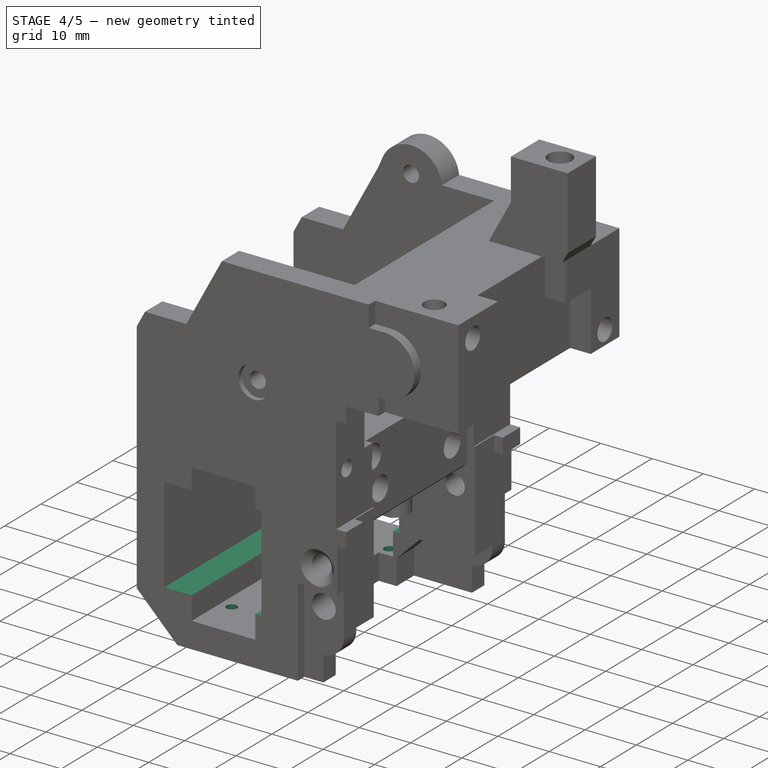
[diagram: stage 4 of 5 — iso view after this stage's code; geometry added in this stage tinted green]
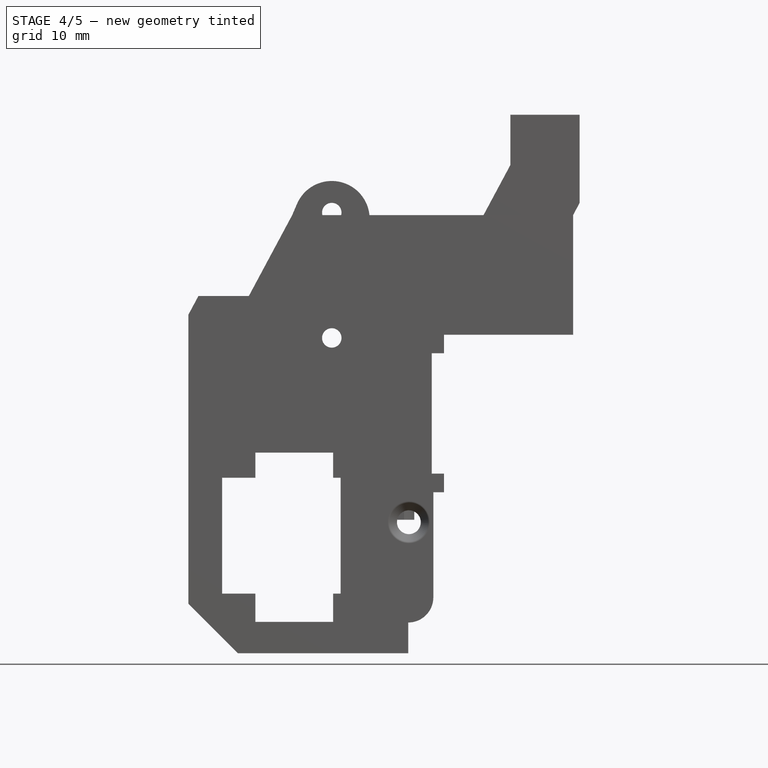
[diagram: stage 4 of 5 — front view after this stage's code; geometry added in this stage tinted green]
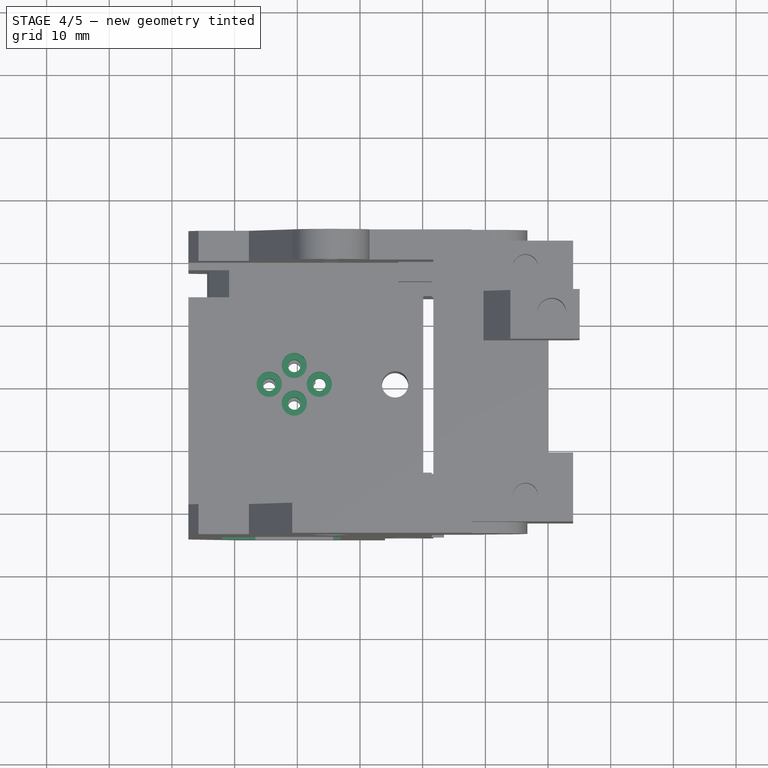
[diagram: stage 4 of 5 — top view after this stage's code; geometry added in this stage tinted green]
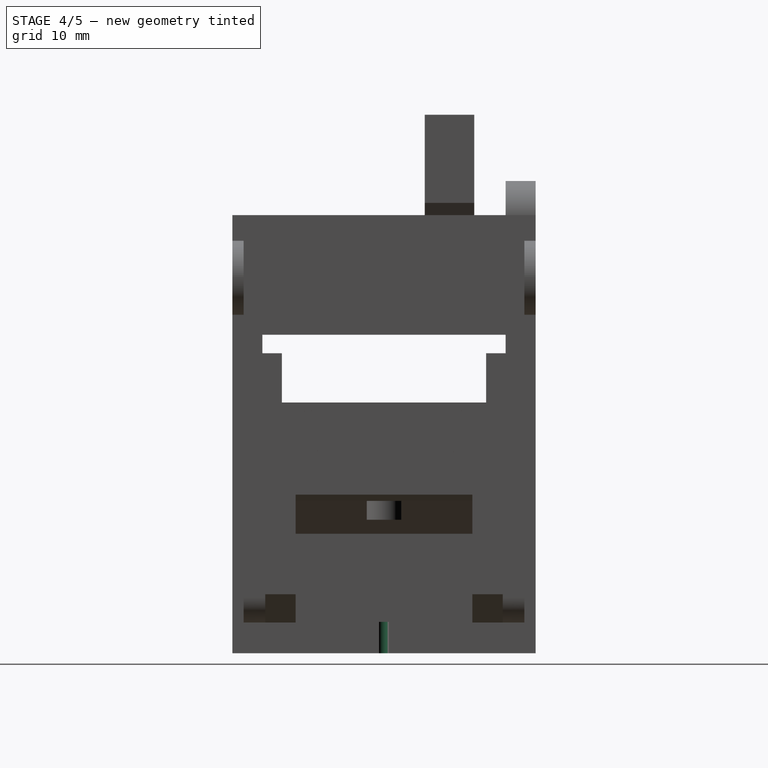
[diagram: stage 4 of 5 — right view after this stage's code; geometry added in this stage tinted green]
FEATURE [Sketcher::SketchObject] Sketch010
  ArcFitTolerance = 1e-06
  AttachmentSupport = -> [Pocket009]
  ExternalGeometry = -> [Pocket009]
  FullyConstrained = true
  MakeInternals = false
  MapMode = 5
  Placement = pos=(0,0,35.1) rot=(0,0,1;0rad)
  sketch-geometry (5):
    g0: Circle CenterX=-4.49 CenterY=0 CenterZ=0 NormalX=0 NormalY=0 NormalZ=1 AngleXU=0 Radius=1
    g1: Circle CenterX=3.51 CenterY=0 CenterZ=0 NormalX=0 NormalY=0 NormalZ=1 AngleXU=0 Radius=1
    g2: LineSegment [constr] StartX=-0.49 StartY=24.2 StartZ=0 EndX=-0.49 EndY=-24.2 EndZ=0
    g3: Circle CenterX=-0.49 CenterY=3 CenterZ=0 NormalX=0 NormalY=0 NormalZ=1 AngleXU=0 Radius=1
    g4: Circle CenterX=-0.49 CenterY=-3 CenterZ=0 NormalX=0 NormalY=0 NormalZ=1 AngleXU=0 Radius=1
  constraints (13):
    c: PointOnObject(g0,g-1)
    c: PointOnObject(g2,g-5)
    c: PointOnObject(g2,g-6)
    c: Symmetric(g-5,g-5,g2)
    c: Symmetric(g1,g0,g2)
    c: Equal(g1,g0)
    c: Diameter(g0) = 2
    c: Distance(g0,g1) = 8
    c: PointOnObject(g3,g2)
    c: Symmetric(g4,g3,g-1)
    c: Equal(g3,g4)
    c: Diameter(g3) = 2
    c: Distance(g4,g3) = 6
FEATURE [PartDesign::Pocket] Pocket010
  BaseFeature = -> Pocket009
  Direction = (0,0,-1)
  Length = 5
  Length2 = 5
  Profile = -> Sketch010
  ReferenceAxis = -> Sketch010 [N_Axis]
  Refine = true
  Suppressed = false
  Type = 1
FEATURE [Sketcher::SketchObject] Sketch011
  ArcFitTolerance = 1e-06
  AttachmentSupport = -> [Pocket010]
  ExternalGeometry = -> [Pocket010]
  FullyConstrained = true
  MakeInternals = false
  MapMode = 5
  Placement = pos=(0,0,35.1) rot=(0,0,1;0rad)
  sketch-geometry (4):
    g0: Circle CenterX=-0.49 CenterY=3 CenterZ=0 NormalX=0 NormalY=0 NormalZ=1 AngleXU=0 Radius=2
    g1: Circle CenterX=3.51 CenterY=0 CenterZ=0 NormalX=0 NormalY=0 NormalZ=1 AngleXU=0 Radius=2
    g2: Circle CenterX=-0.49 CenterY=-3 CenterZ=0 NormalX=0 NormalY=0 NormalZ=1 AngleXU=0 Radius=2
    g3: Circle CenterX=-4.49 CenterY=0 CenterZ=0 NormalX=0 NormalY=0 NormalZ=1 AngleXU=0 Radius=2
  constraints (8):
    c: Coincident(g0,g-4)
    c: Coincident(g1,g-5)
    c: Coincident(g2,g-6)
    c: Coincident(g3,g-3)
    c: Equal(g3,g2)
    c: Equal(g2,g0)
    c: Equal(g0,g1)
    c: Diameter(g3) = 4
FEATURE [PartDesign::Pocket] Pocket011
  BaseFeature = -> Pocket010
  Direction = (0,0,-1)
  Length = 3
  Length2 = 5
  Profile = -> Sketch011
  ReferenceAxis = -> Sketch011 [N_Axis]
  Refine = true
  Suppressed = false
  Type = 0
FEATURE [Sketcher::SketchObject] Sketch012
  ArcFitTolerance = 1e-06
  AttachmentSupport = -> [Pocket011]
  ExternalGeometry = -> [Pocket011]
  FullyConstrained = true
  MakeInternals = false
  MapMode = 5
  Placement = pos=(0,-24.2,0) rot=(1,0,0;1.5708rad)
  sketch-geometry (12):
    g0: LineSegment StartX=-6.69 StartY=27.1 StartZ=0 EndX=-6.69 EndY=21.1 EndZ=0
    g1: LineSegment StartX=-6.69 StartY=21.1 StartZ=0 EndX=5.71 EndY=21.1 EndZ=0
    g2: LineSegment StartX=5.71 StartY=21.1 StartZ=0 EndX=5.71 EndY=27.1 EndZ=0
    g3: LineSegment StartX=5.71 StartY=27.1 StartZ=0 EndX=-6.69 EndY=27.1 EndZ=0
    g4: LineSegment StartX=-6.69 StartY=0.1 StartZ=0 EndX=5.71 EndY=0.1 EndZ=0
    g5: LineSegment StartX=5.71 StartY=0.1 StartZ=0 EndX=5.71 EndY=6.1 EndZ=0
    g6: LineSegment StartX=5.71 StartY=6.1 StartZ=0 EndX=-6.69 EndY=6.1 EndZ=0
    g7: LineSegment StartX=-6.69 StartY=6.1 StartZ=0 EndX=-6.69 EndY=0.1 EndZ=0
    g8: LineSegment StartX=-10.49 StartY=21.1 StartZ=0 EndX=-10.49 EndY=6.1 EndZ=0
    g9: LineSegment StartX=-10.49 StartY=6.1 StartZ=0 EndX=4.51 EndY=6.1 EndZ=0
    g10: LineSegment StartX=4.51 StartY=6.1 StartZ=0 EndX=4.51 EndY=21.1 EndZ=0
    g11: LineSegment StartX=4.51 StartY=21.1 StartZ=0 EndX=-10.49 EndY=21.1 EndZ=0
  constraints (34):
    c: Coincident(g0,g1)
    c: Coincident(g1,g2)
    c: Coincident(g2,g3)
    c: Coincident(g3,g0)
    c: Vertical(g0)
    c: Vertical(g2)
    c: Horizontal(g1)
    c: Horizontal(g3)
    c: Coincident(g0,g-3)
    c: Coincident(g4,g5)
    c: Coincident(g5,g6)
    c: Coincident(g6,g7)
    c: Coincident(g7,g4)
    c: Horizontal(g4)
    c: Horizontal(g6)
    c: Vertical(g5)
    c: Vertical(g7)
    c: Coincident(g4,g-4)
    c: Coincident(g8,g9)
    c: Coincident(g9,g10)
    c: Coincident(g10,g11)
    c: Coincident(g11,g8)
    c: Vertical(g8)
    c: Vertical(g10)
    c: Horizontal(g9)
    c: Horizontal(g11)
    c: PointOnObject(g8,g1)
    c: PointOnObject(g9,g6)
    c: PointOnObject(g-3,g2)
    c: PointOnObject(g-4,g5)
    c: Equal(g2,g5)
    c: Distance(g2,g2) = 6
    c: Distance(g9,g9) = 15
    c: Distance(g10,g1) = 1.2
FEATURE [PartDesign::Pocket] Pocket012
  BaseFeature = -> Pocket011
  Direction = (0,0,1)
  Length = 0.05
  Length2 = 5
  Profile = -> Pocket011 [Face35]
  Refine = true
  Suppressed = false
  Type = 0
FEATURE [PartDesign::Pocket] Pocket013
  BaseFeature = -> Pocket012
  Direction = (0,-2e-16,-1)
  Length = 0.05
  Length2 = 5
  Profile = -> Pocket012 [Face33]
  Refine = true
  Suppressed = false
  Type = 0
FEATURE [PartDesign::Pocket] Pocket014
  BaseFeature = -> Pocket013
  Direction = (0,0,-1)
  Length = 0.5
  Length2 = 5
  Profile = -> Pocket013 [Face33]
  Refine = true
  Suppressed = false
  Type = 0
FEATURE [PartDesign::Pocket] Pocket015
  BaseFeature = -> Pocket014
  Direction = (0,0,-1)
  Length = 0
  Length2 = 5
  Profile = -> Pocket014 [Face31,Face97]
  Refine = true
  Suppressed = false
  Type = 3
  UpToFace = -> Pocket014 [Face35]
FEATURE [PartDesign::Pad] Pad012
  BaseFeature = -> Pocket015
  Direction = (0,0,-1)
  Length = 0.05
  Length2 = 10
  Profile = -> Pocket015 [Face38]
  Refine = true
  Suppressed = false
  Type = 0
FEATURE [PartDesign::Pad] Pad013
  BaseFeature = -> Pad012
  Direction = (0,2e-16,1)
  Length = 0.05
  Length2 = 10
  Profile = -> Pad012 [Face9]
  Refine = true
  Suppressed = false
  Type = 0
FEATURE [Sketcher::SketchObject] Sketch013
  ArcFitTolerance = 1e-06
  AttachmentSupport = -> [Pad013]
  ExternalGeometry = -> [Pad013]
  FullyConstrained = true
  MakeInternals = false
  MapMode = 5
  Placement = pos=(0,0,0.1) rot=(0,0,1;0rad)
  sketch-geometry (6):
    g0: LineSegment [constr] StartX=-4.49 StartY=24.2 StartZ=0 EndX=-4.49 EndY=-24.2 EndZ=0
    g1: LineSegment [constr] StartX=3.51 StartY=24.2 StartZ=0 EndX=3.51 EndY=-24.2 EndZ=0
    g2: Circle CenterX=3.51 CenterY=16.2 CenterZ=0 NormalX=0 NormalY=0 NormalZ=1 AngleXU=0 Radius=1
    g3: Circle CenterX=-4.49 CenterY=16.2 CenterZ=0 NormalX=0 NormalY=0 NormalZ=1 AngleXU=0 Radius=1
    g4: Circle CenterX=-4.49 CenterY=-16.2 CenterZ=0 NormalX=0 NormalY=0 NormalZ=1 AngleXU=0 Radius=1
    g5: Circle CenterX=3.51 CenterY=-16.2 CenterZ=0 NormalX=0 NormalY=0 NormalZ=1 AngleXU=0 Radius=1
  constraints (20):
    c: PointOnObject(g0,g-3)
    c: PointOnObject(g0,g-4)
    c: Vertical(g0)
    c: PointOnObject(g-5,g0)
    c: PointOnObject(g1,g-3)
    c: PointOnObject(g1,g-4)
    c: Vertical(g1)
    c: PointOnObject(g-6,g1)
    c: PointOnObject(g2,g1)
    c: PointOnObject(g3,g0)
    c: PointOnObject(g4,g0)
    c: PointOnObject(g5,g1)
    c: Distance(g2,g1) = 8
    c: Distance(g3,g-3) = 8
    c: Distance(g4,g0) = 8
    c: Distance(g1,g5) = 8
    c: Equal(g5,g4)
    c: Equal(g4,g3)
    c: Equal(g3,g2)
    c: Equal(g2,g-5)
FEATURE [PartDesign::Pocket] Pocket016
  BaseFeature = -> Pad013
  Direction = (0,0,-1)
  Length = 5
  Length2 = 5
  Profile = -> Sketch013
  ReferenceAxis = -> Sketch013 [N_Axis]
  Refine = true
  Suppressed = false
  Type = 0
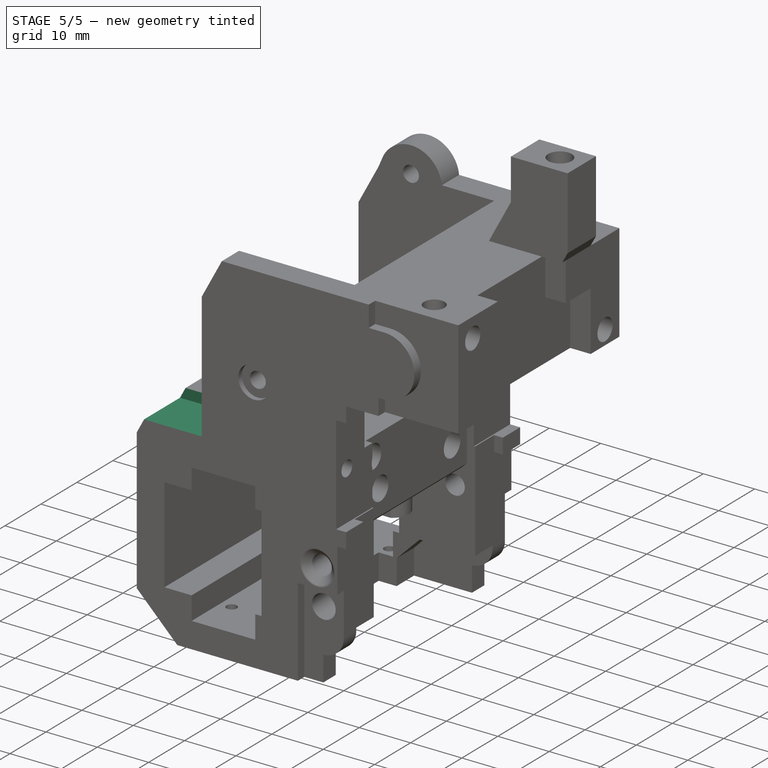
[diagram: stage 5 of 5 — iso view after this stage's code; geometry added in this stage tinted green]
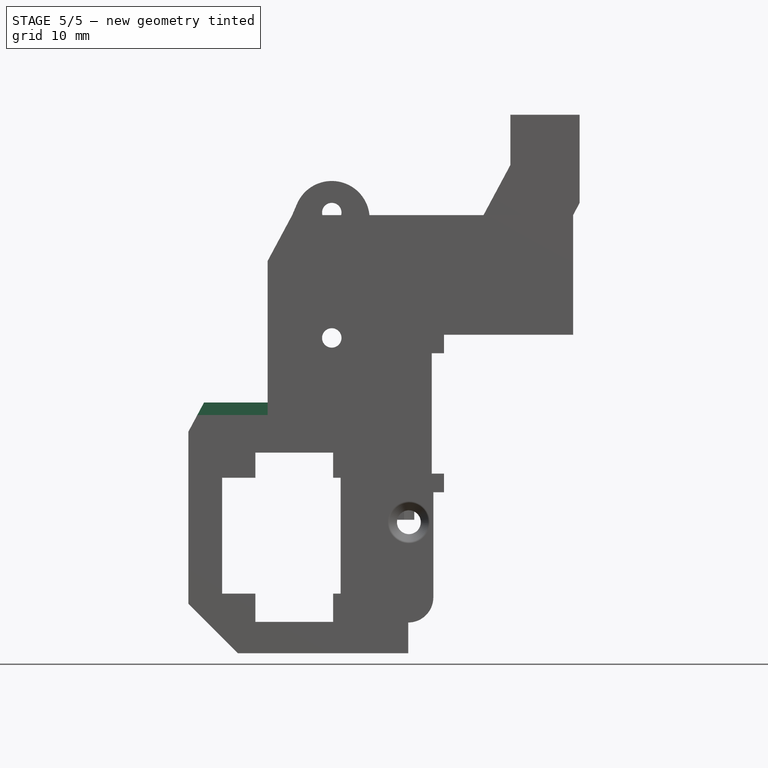
[diagram: stage 5 of 5 — front view after this stage's code; geometry added in this stage tinted green]
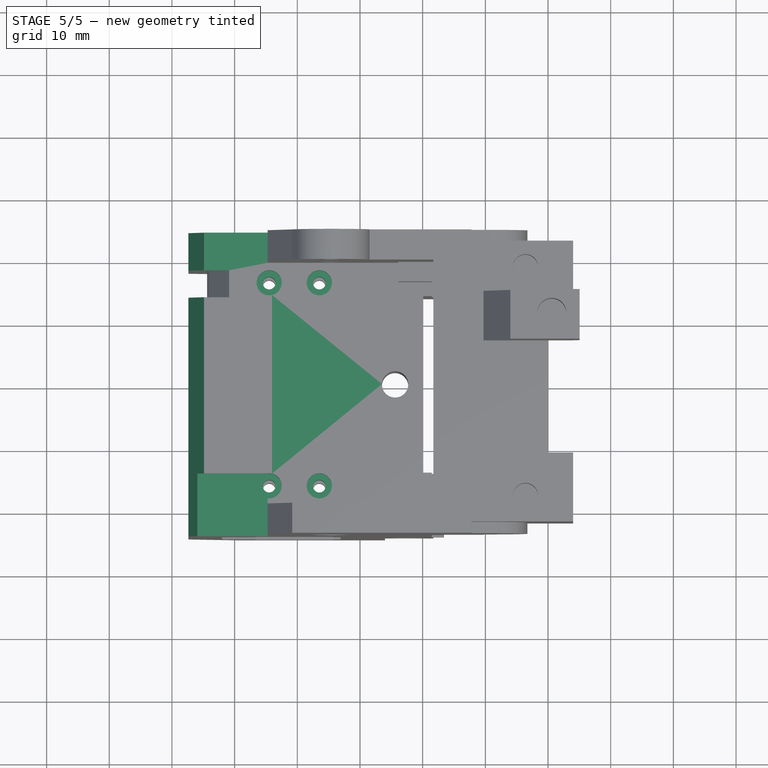
[diagram: stage 5 of 5 — top view after this stage's code; geometry added in this stage tinted green]
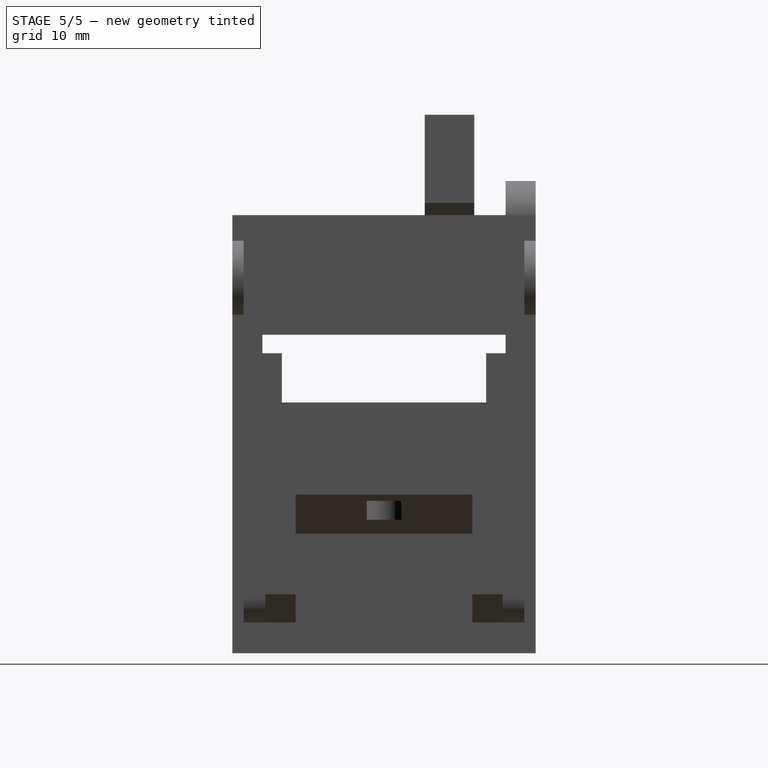
[diagram: stage 5 of 5 — right view after this stage's code; geometry added in this stage tinted green]
FEATURE [Sketcher::SketchObject] Sketch014
  ArcFitTolerance = 1e-06
  AttachmentSupport = -> [Pocket016]
  ExternalGeometry = -> [Pocket016]
  FullyConstrained = true
  MakeInternals = false
  MapMode = 5
  Placement = pos=(1.9e-15,0,-4.9) rot=(1,0,0;3.14159rad)
  sketch-geometry (5):
    g0: LineSegment StartX=2.91 StartY=-0.8 StartZ=0 EndX=2.91 EndY=0.8 EndZ=0
    g1: Circle CenterX=-0.49 CenterY=-3 CenterZ=0 NormalX=0 NormalY=0 NormalZ=1 AngleXU=0 Radius=1
    g2: Circle CenterX=-4.49 CenterY=0 CenterZ=0 NormalX=0 NormalY=0 NormalZ=1 AngleXU=0 Radius=1
    g3: Circle CenterX=-0.49 CenterY=3 CenterZ=0 NormalX=0 NormalY=0 NormalZ=1 AngleXU=0 Radius=1
    g4: ArcOfCircle CenterX=3.51001 CenterY=0 CenterZ=0 NormalX=0 NormalY=0 NormalZ=1 AngleXU=0 Radius=1 StartAngle=2.2143 EndAngle=4.06888
  constraints (11):
    c: Coincident(g0,g-6)
    c: Coincident(g0,g-6)
    c: Coincident(g1,g-4)
    c: Equal(g1,g-4)
    c: Coincident(g2,g-3)
    c: Equal(g2,g-3)
    c: Coincident(g3,g-5)
    c: Equal(g3,g-5)
    c: Coincident(g4,g0)
    c: Coincident(g4,g0)
    c: Tangent(g4,g-6)
FEATURE [PartDesign::Pad] Pad014
  BaseFeature = -> Pocket016
  Direction = (0,0,-1)
  Length = 10
  Length2 = 10
  Profile = -> Sketch014
  ReferenceAxis = -> Sketch014 [N_Axis]
  Refine = true
  Suppressed = false
  Type = 3
  UpToFace = -> Pocket016 [Face38]
FEATURE [Sketcher::SketchObject] Sketch015
  ArcFitTolerance = 1e-06
  AttachmentSupport = -> [Pad014]
  ExternalGeometry = -> [Pad014]
  FullyConstrained = true
  MakeInternals = false
  MapMode = 5
  Placement = pos=(2.5e-15,-1.3e-15,-4.9) rot=(1,0,0;3.14159rad)
  sketch-geometry (5):
    g0: LineSegment StartX=-3.11604 StartY=-13.9 StartZ=0 EndX=-6.69 EndY=-13.9 EndZ=0
    g1: LineSegment StartX=-6.69 StartY=-13.9 StartZ=0 EndX=-6.69 EndY=-18.2 EndZ=0
    g2: LineSegment StartX=-6.69 StartY=-18.2 StartZ=0 EndX=-3.11604 EndY=-18.2 EndZ=0
    g3: LineSegment StartX=-3.11604 StartY=-18.2 StartZ=0 EndX=-3.11604 EndY=-13.9 EndZ=0
    g4: Circle CenterX=-4.49 CenterY=-16.2 CenterZ=0 NormalX=0 NormalY=0 NormalZ=1 AngleXU=0 Radius=1
  constraints (12):
    c: Coincident(g0,g1)
    c: Coincident(g1,g2)
    c: Coincident(g2,g3)
    c: Coincident(g3,g0)
    c: Horizontal(g0)
    c: Horizontal(g2)
    c: Vertical(g1)
    c: PointOnObject(g1,g-3)
    c: Coincident(g2,g-4)
    c: Coincident(g4,g-5)
    c: Equal(g4,g-5)
    c: Coincident(g0,g-4)
FEATURE [PartDesign::Pad] Pad015
  BaseFeature = -> Pad014
  Direction = (0,0,-1)
  Length = 10
  Length2 = 10
  Profile = -> Sketch015
  ReferenceAxis = -> Sketch015 [N_Axis]
  Refine = true
  Suppressed = false
  Type = 3
  UpToFace = -> Pad014 [Face190]
FEATURE [Sketcher::SketchObject] Sketch016
  ArcFitTolerance = 1e-06
  AttachmentSupport = -> [Pad015]
  ExternalGeometry = -> [Pad015]
  FullyConstrained = true
  MakeInternals = false
  MapMode = 5
  Placement = pos=(0,0,27.1) rot=(1,0,0;3.14159rad)
  sketch-geometry (4):
    g0: Circle CenterX=-4.49 CenterY=16.2 CenterZ=0 NormalX=0 NormalY=0 NormalZ=1 AngleXU=0 Radius=1.00001
    g1: Circle CenterX=3.51 CenterY=16.2 CenterZ=0 NormalX=0 NormalY=0 NormalZ=1 AngleXU=0 Radius=1
    g2: Circle CenterX=3.51 CenterY=-16.2 CenterZ=0 NormalX=0 NormalY=0 NormalZ=1 AngleXU=0 Radius=1
    g3: Circle CenterX=-4.49 CenterY=-16.2 CenterZ=0 NormalX=0 NormalY=0 NormalZ=1 AngleXU=0 Radius=1
  constraints (8):
    c: Coincident(g0,g-3)
    c: Tangent(g0,g-3)
    c: Coincident(g1,g-4)
    c: Equal(g1,g-4)
    c: Coincident(g2,g-6)
    c: Equal(g2,g-6)
    c: Coincident(g3,g-5)
    c: Equal(g3,g-5)
FEATURE [PartDesign::Pocket] Pocket017
  BaseFeature = -> Pad015
  Direction = (0,0,1)
  Length = 10
  Length2 = 5
  Profile = -> Sketch016
  ReferenceAxis = -> Sketch016 [N_Axis]
  Refine = true
  Suppressed = false
  Type = 0
FEATURE [Sketcher::SketchObject] Sketch017
  ArcFitTolerance = 1e-06
  AttachmentSupport = -> [Pocket017]
  ExternalGeometry = -> [Pocket017]
  FullyConstrained = true
  MakeInternals = false
  MapMode = 5
  Placement = pos=(0,0,35.1) rot=(0,0,1;0rad)
  sketch-geometry (4):
    g0: Circle CenterX=-4.49 CenterY=16.2 CenterZ=0 NormalX=0 NormalY=0 NormalZ=1 AngleXU=0 Radius=2
    g1: Circle CenterX=3.51 CenterY=16.2 CenterZ=0 NormalX=0 NormalY=0 NormalZ=1 AngleXU=0 Radius=2
    g2: Circle CenterX=3.51 CenterY=-16.2 CenterZ=0 NormalX=0 NormalY=0 NormalZ=1 AngleXU=0 Radius=2
    g3: Circle CenterX=-4.49 CenterY=-16.2 CenterZ=0 NormalX=0 NormalY=0 NormalZ=1 AngleXU=0 Radius=2
  constraints (8):
    c: Coincident(g0,g-3)
    c: Coincident(g1,g-4)
    c: Coincident(g2,g-5)
    c: Coincident(g3,g-6)
    c: Equal(g3,g2)
    c: Equal(g2,g1)
    c: Equal(g1,g0)
    c: Equal(g0,g-7)
FEATURE [PartDesign::Pocket] Pocket018
  BaseFeature = -> Pocket017
  Direction = (0,0,-1)
  Length = 0
  Length2 = 5
  Profile = -> Sketch017
  ReferenceAxis = -> Sketch017 [N_Axis]
  Refine = true
  Suppressed = false
  Type = 3
  UpToFace = -> Pocket017 [Face173]
FEATURE [Sketcher::SketchObject] Sketch018
  ArcFitTolerance = 1e-06
  AttachmentSupport = -> [Pocket018]
  ExternalGeometry = -> [Pocket018]
  FullyConstrained = true
  MakeInternals = false
  MapMode = 5
  Placement = pos=(0,0,35.1) rot=(0,0,1;0rad)
  sketch-geometry (4):
    g0: LineSegment StartX=-6.69 StartY=6.48 StartZ=0 EndX=-6.69 EndY=-6.48 EndZ=0
    g1: LineSegment StartX=-6.69 StartY=-6.48 StartZ=0 EndX=5.71 EndY=-6.48 EndZ=0
    g2: LineSegment StartX=5.71 StartY=-6.48 StartZ=0 EndX=5.71 EndY=6.48 EndZ=0
    g3: LineSegment StartX=5.71 StartY=6.48 StartZ=0 EndX=-6.69 EndY=6.48 EndZ=0
  constraints (11):
    c: Coincident(g0,g1)
    c: Coincident(g1,g2)
    c: Coincident(g2,g3)
    c: Coincident(g3,g0)
    c: Vertical(g2)
    c: Horizontal(g1)
    c: Horizontal(g3)
    c: PointOnObject(g0,g-3)
    c: PointOnObject(g1,g-4)
    c: Symmetric(g0,g0,g-1)
    c: DistanceY(g0,g0) = 12.96
FEATURE [PartDesign::Pad] Pad016
  BaseFeature = -> Pocket018
  Direction = (0,0,1)
  Length = 10
  Length2 = 10
  Profile = -> Sketch018
  ReferenceAxis = -> Sketch018 [N_Axis]
  Refine = true
  Suppressed = false
  Type = 3
  UpToFace = -> Pocket018 [Face32]
FEATURE [Sketcher::SketchObject] Sketch019
  ArcFitTolerance = 1e-06
  AttachmentSupport = -> [Pad016]
  ExternalGeometry = -> [Pad016]
  FullyConstrained = true
  MakeInternals = false
  MapMode = 5
  Placement = pos=(2.6e-15,-1.3e-15,-4.9) rot=(1,0,0;3.14159rad)
  sketch-geometry (8):
    g0: LineSegment [constr] StartX=-4.49 StartY=16.2 StartZ=0 EndX=-4.49 EndY=-16.2 EndZ=0
    g1: LineSegment [constr] StartX=-4.49 StartY=-16.2 StartZ=0 EndX=3.51 EndY=-16.2 EndZ=0
    g2: LineSegment [constr] StartX=3.51 StartY=-16.2 StartZ=0 EndX=3.51 EndY=16.2 EndZ=0
    g3: LineSegment [constr] StartX=3.51 StartY=16.2 StartZ=0 EndX=-4.49 EndY=16.2 EndZ=0
    g4: Circle CenterX=-4.49 CenterY=0 CenterZ=0 NormalX=0 NormalY=0 NormalZ=1 AngleXU=0 Radius=1
    g5: LineSegment [constr] StartX=-0.49 StartY=16.2 StartZ=0 EndX=-0.49 EndY=-16.2 EndZ=0
    g6: Circle CenterX=-0.49 CenterY=3 CenterZ=0 NormalX=0 NormalY=0 NormalZ=1 AngleXU=0 Radius=1
    g7: Circle CenterX=-0.49 CenterY=-3 CenterZ=0 NormalX=0 NormalY=0 NormalZ=1 AngleXU=0 Radius=1
  constraints (20):
    c: Coincident(g0,g1)
    c: Coincident(g1,g2)
    c: Coincident(g2,g3)
    c: Coincident(g3,g0)
    c: Vertical(g0)
    c: Vertical(g2)
    c: Horizontal(g1)
    c: Horizontal(g3)
    c: Coincident(g0,g-6)
    c: Coincident(g1,g-4)
    c: PointOnObject(g4,g0)
    c: PointOnObject(g4,g-1)
    c: Symmetric(g3,g3,g5)
    c: Symmetric(g1,g1,g5)
    c: PointOnObject(g6,g5)
    c: Equal(g4,g6)
    c: Equal(g4,g7)
    c: Equal(g-6,g6)
    c: Symmetric(g6,g7,g-1)
    c: DistanceY(g7,g6) = 6
FEATURE [PartDesign::Pocket] Pocket019
  BaseFeature = -> Pad016
  Direction = (0,0,1)
  Length = 5
  Length2 = 5
  Profile = -> Sketch019
  ReferenceAxis = -> Sketch019 [N_Axis]
  Refine = true
  Suppressed = false
  Type = 0
FEATURE [Sketcher::SketchObject] Sketch020
  ArcFitTolerance = 1e-06
  AttachmentSupport = -> [Pocket019]
  ExternalGeometry = -> [Pocket019]
  FullyConstrained = true
  MakeInternals = false
  MapMode = 5
  Placement = pos=(0,-24.2,0) rot=(1,0,0;1.5708rad)
  sketch-geometry (5):
    g0: LineSegment StartX=-4.72819 StartY=35.1 StartZ=0 EndX=-14.88 EndY=35.1 EndZ=0
    g1: LineSegment StartX=-14.88 StartY=35.1 StartZ=0 EndX=-17.38 EndY=30.4377 EndZ=0
    g2: LineSegment StartX=-17.38 StartY=30.4377 StartZ=0 EndX=-17.38 EndY=57.6948 EndZ=0
    g3: LineSegment StartX=-17.38 StartY=57.6948 StartZ=0 EndX=-4.72819 EndY=57.6948 EndZ=0
    g4: LineSegment StartX=-4.72819 StartY=57.6948 StartZ=0 EndX=-4.72819 EndY=35.1 EndZ=0
  constraints (15):
    c: PointOnObject(g0,g-5)
    c: PointOnObject(g0,g-5)
    c: Coincident(g1,g0)
    c: PointOnObject(g1,g-4)
    c: Coincident(g2,g1)
    c: Vertical(g2)
    c: Coincident(g3,g2)
    c: Horizontal(g3)
    c: Parallel(g-3,g1)
    c: Distance(g0,g2) = 2.5
    c: PointOnObject(g3,g-3)
    c: Coincident(g4,g3)
    c: Coincident(g4,g0)
    c: Vertical(g4)
    c: Distance(g-3,g4) = 3
FEATURE [PartDesign::Pocket] Pocket020
  BaseFeature = -> Pocket019
  Direction = (0,1,-2e-16)
  Length = 5
  Length2 = 5
  Profile = -> Sketch020
  ReferenceAxis = -> Sketch020 [N_Axis]
  Refine = true
  Suppressed = false
  Type = 1
FEATURE [Sketcher::SketchObject] Sketch021
  ArcFitTolerance = 1e-06
  AttachmentSupport = -> [Pocket020]
  ExternalGeometry = -> [Pocket020]
  FullyConstrained = true
  MakeInternals = false
  MapMode = 5
  Placement = pos=(0,-24.2,0) rot=(1,0,0;1.5708rad)
  sketch-geometry (4):
    g0: LineSegment StartX=-4.72819 StartY=35.1 StartZ=0 EndX=-17.38 EndY=35.1 EndZ=0
    g1: LineSegment StartX=-17.38 StartY=35.1 StartZ=0 EndX=-17.38 EndY=33.1 EndZ=0
    g2: LineSegment StartX=-17.38 StartY=33.1 StartZ=0 EndX=-4.72819 EndY=33.1 EndZ=0
    g3: LineSegment StartX=-4.72819 StartY=33.1 StartZ=0 EndX=-4.72819 EndY=35.1 EndZ=0
  constraints (11):
    c: Coincident(g0,g1)
    c: Coincident(g1,g2)
    c: Coincident(g2,g3)
    c: Coincident(g3,g0)
    c: Horizontal(g0)
    c: Horizontal(g2)
    c: Vertical(g1)
    c: Vertical(g3)
    c: Coincident(g0,g-3)
    c: PointOnObject(g1,g-4)
    c: DistanceY(g1,g1) = 2
FEATURE [PartDesign::Pocket] Pocket021
  BaseFeature = -> Pocket020
  Direction = (0,1,-2e-16)
  Length = 10
  Length2 = 5
  Profile = -> Sketch021
  ReferenceAxis = -> Sketch021 [N_Axis]
  Refine = true
  Suppressed = false
  Type = 0
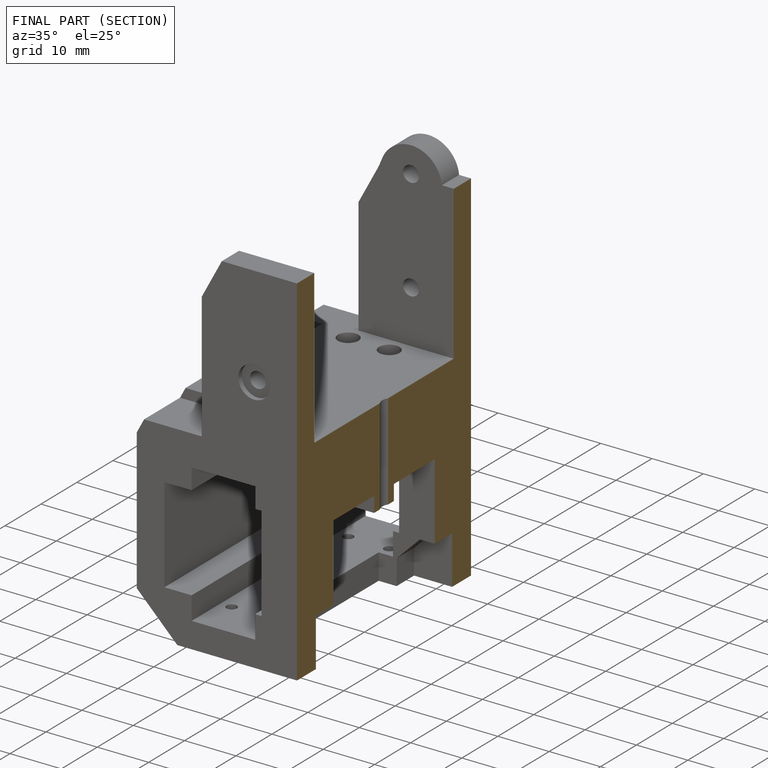
[diagram: finished part — half-section view (interior)]
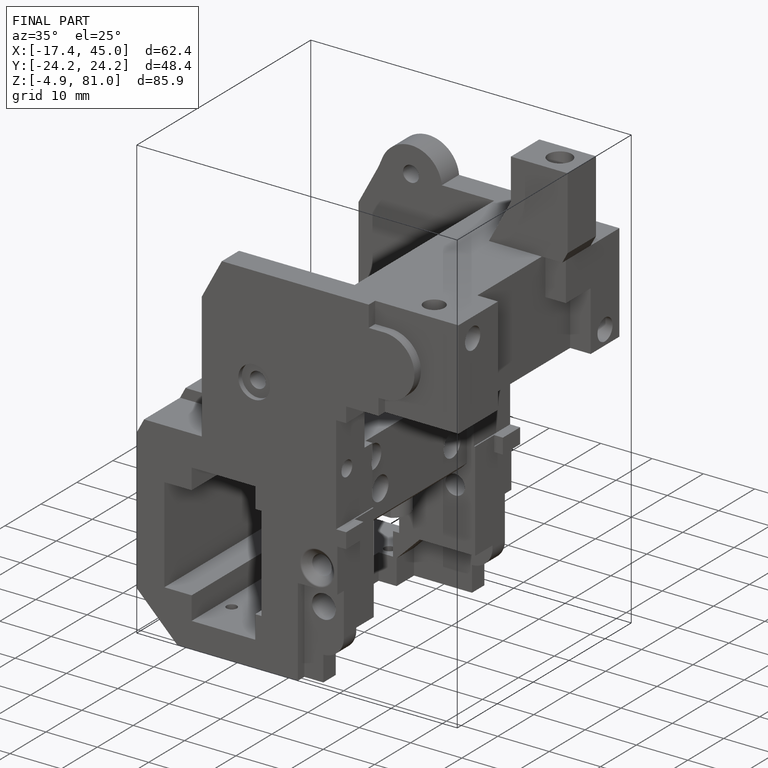
[diagram: finished part — iso view with bounding-box wireframe]
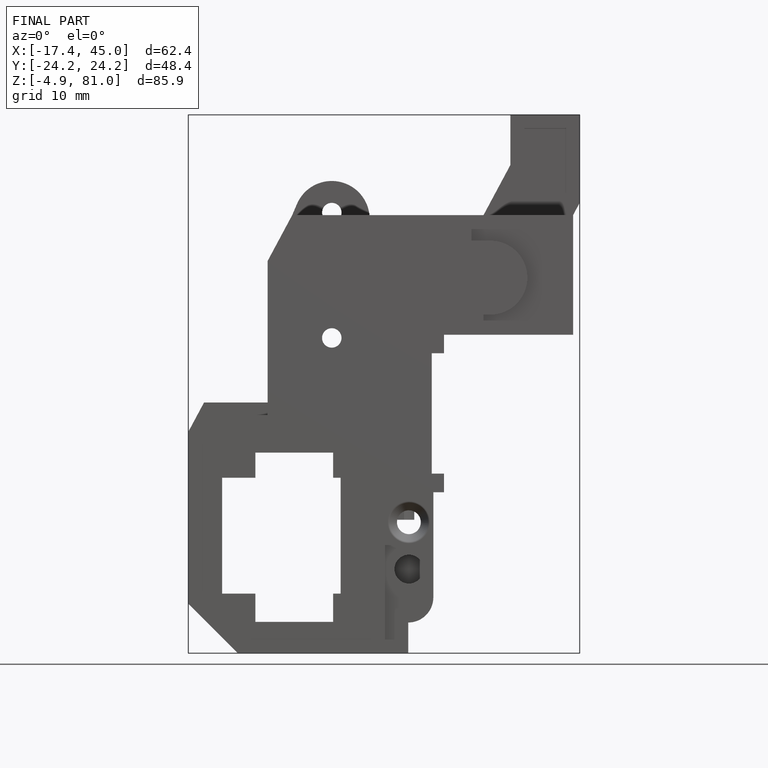
[diagram: finished part — front view with bounding-box wireframe]
